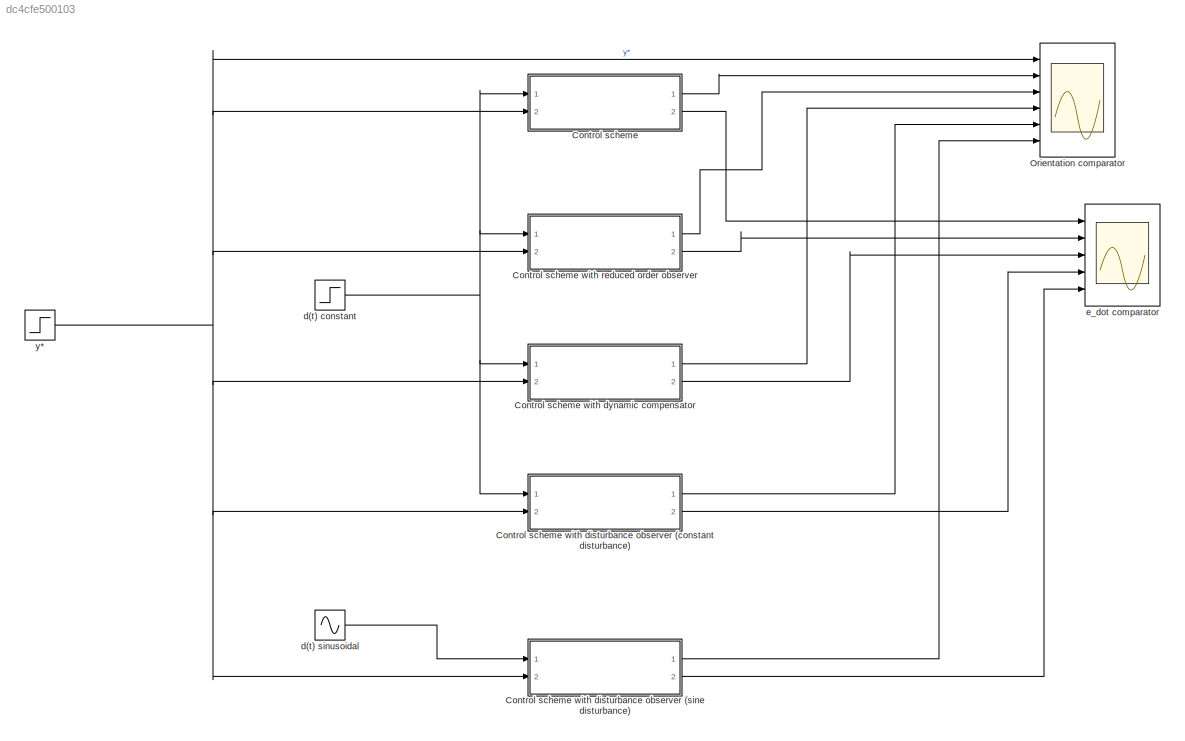
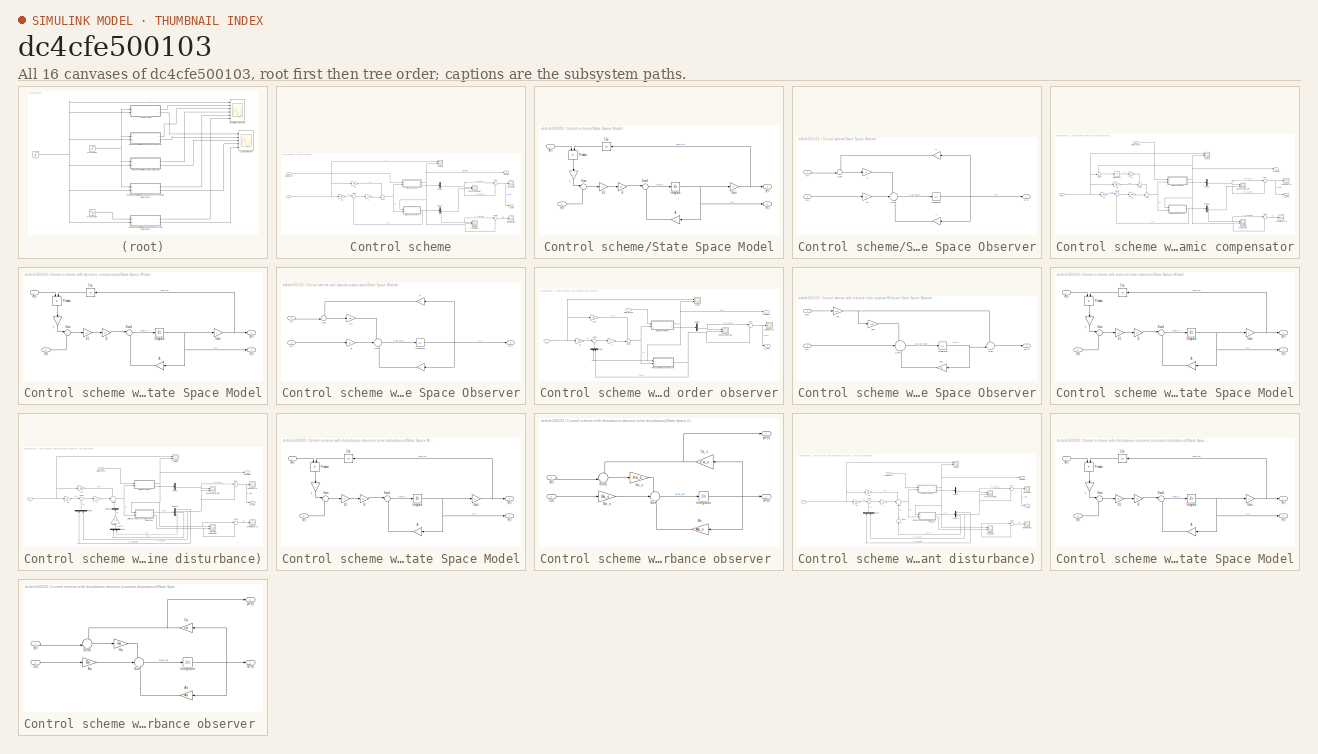
[diagram: thumbnail index - all 16 canvases of the model, root first then tree order]
MODEL slx_dc4cfe500103
KIND model
CONFIG AbsTol = auto
CONFIG EnableMultiTasking = off
CONFIG FixedStep = auto
CONFIG MaxStep = auto
CONFIG MinStep = auto
CONFIG RelTol = 1e-3
CONFIG SampleTimeConstraint = Unconstrained
CONFIG Solver = VariableStepAuto
CONFIG SolverName = VariableStepAuto
CONFIG StartTime = 0.0
CONFIG StopTime = 50
BLOCK [SubSystem] Control scheme
  Ports = [2, 2]
  RequestExecContextInheritance = off
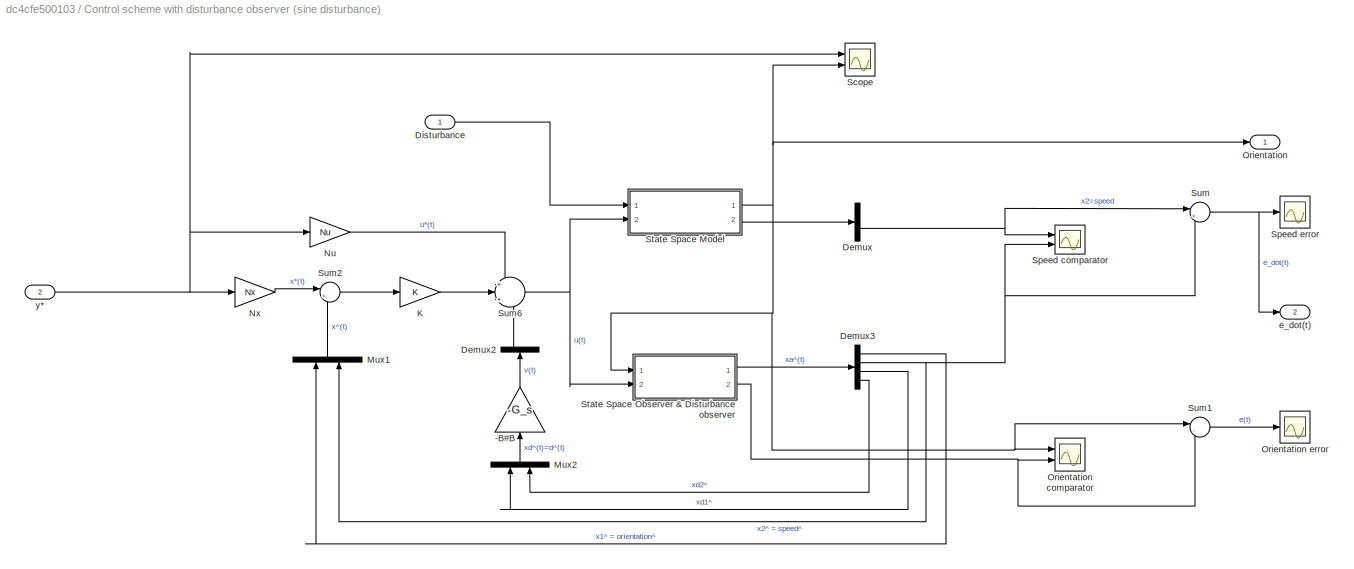
BLOCK [SubSystem] Control scheme with disturbance observer  (sine disturbance)
  Ports = [2, 2]
  RequestExecContextInheritance = off
BLOCK [Gain] Control scheme with disturbance observer  (sine disturbance)/-B#B
  Gain = -G_s
  Multiplication = Matrix(K*u)
  OutDataTypeStr = Inherit: Inherit via internal rule
  ParamDataTypeStr = Inherit: Inherit via internal rule
  SaturateOnIntegerOverflow = off
BLOCK [Demux] Control scheme with disturbance observer  (sine disturbance)/Demux
  DisplayOption = bar
  Outputs = 2
  Ports = [1, 2]
BLOCK [Demux] Control scheme with disturbance observer  (sine disturbance)/Demux2
  DisplayOption = bar
  Outputs = 2
  Ports = [1, 2]
BLOCK [Demux] Control scheme with disturbance observer  (sine disturbance)/Demux3
  DisplayOption = bar
  Ports = [1, 4]
BLOCK [Inport] Control scheme with disturbance observer  (sine disturbance)/Disturbance
  IconDisplay = Port number
BLOCK [Gain] Control scheme with disturbance observer  (sine disturbance)/K
  Gain = K
  Multiplication = Matrix(K*u)
  OutDataTypeStr = Inherit: Inherit via internal rule
  ParamDataTypeStr = Inherit: Inherit via internal rule
  SaturateOnIntegerOverflow = off
BLOCK [Mux] Control scheme with disturbance observer  (sine disturbance)/Mux1
  DisplayOption = bar
  Inputs = 2
  Ports = [2, 1]
BLOCK [Mux] Control scheme with disturbance observer  (sine disturbance)/Mux2
  DisplayOption = bar
  Inputs = 2
  Ports = [2, 1]
BLOCK [Gain] Control scheme with disturbance observer  (sine disturbance)/Nu
  Gain = Nu
  Multiplication = Matrix(K*u)
  OutDataTypeStr = Inherit: Inherit via internal rule
  ParamDataTypeStr = Inherit: Inherit via internal rule
  SaturateOnIntegerOverflow = off
BLOCK [Gain] Control scheme with disturbance observer  (sine disturbance)/Nx
  Gain = Nx
  Multiplication = Matrix(K*u)
  OutDataTypeStr = Inherit: Inherit via internal rule
  ParamDataTypeStr = Inherit: Inherit via internal rule
  SaturateOnIntegerOverflow = off
BLOCK [Outport] Control scheme with disturbance observer  (sine disturbance)/Orientation
  IconDisplay = Port number
BLOCK [Scope] Control scheme with disturbance observer  (sine disturbance)/Orientation comparator
  Floating = off
  NumInputPorts = 2
  Ports = [2]
  ScopeSpecificationString = Simulink.scopes.TimeScopeBlockCfg('CurrentConfiguration', extmgr.ConfigurationSet(extmgr.Configuration('Core','General UI',true),extmgr.Configuration('Core','Source UI',true),extmgr.Configuration('Sources','WiredSimulink',true,'DataLoggingVariableName','ScopeData2'),extmgr.Configuration('Visuals','Time Domain',true,'SerializedDisplays',{struct('MinYLimReal','-0.63015','MaxYLimReal','5.67134','YLab...<+1553ch>
BLOCK [Scope] Control scheme with disturbance observer  (sine disturbance)/Orientation error 
  Floating = off
  NumInputPorts = 1
  Ports = [1]
  ScopeSpecificationString = Simulink.scopes.TimeScopeBlockCfg('CurrentConfiguration', extmgr.ConfigurationSet(extmgr.Configuration('Core','General UI',true),extmgr.Configuration('Core','Source UI',true),extmgr.Configuration('Sources','WiredSimulink',true,'DataLoggingVariableName','ScopeData1'),extmgr.Configuration('Visuals','Time Domain',true,'SerializedDisplays',{struct('MinYLimReal','-1.14107','MaxYLimReal','0.26967','YLab...<+1413ch>
BLOCK [Scope] Control scheme with disturbance observer  (sine disturbance)/Scope
  Floating = off
  NumInputPorts = 2
  Ports = [2]
  ScopeSpecificationString = Simulink.scopes.TimeScopeBlockCfg('CurrentConfiguration', extmgr.ConfigurationSet(extmgr.Configuration('Core','General UI',true),extmgr.Configuration('Core','Source UI',true),extmgr.Configuration('Sources','WiredSimulink',true,'DataLoggingVariableName','ScopeData3'),extmgr.Configuration('Visuals','Time Domain',true,'SerializedDisplays',{struct('MinYLimReal','0.44598','MaxYLimReal','5.98614','YLabe...<+1671ch>
BLOCK [Scope] Control scheme with disturbance observer  (sine disturbance)/Speed comparator
  Floating = off
  NumInputPorts = 2
  Ports = [2]
  ScopeSpecificationString = Simulink.scopes.TimeScopeBlockCfg('CurrentConfiguration', extmgr.ConfigurationSet(extmgr.Configuration('Core','General UI',true),extmgr.Configuration('Core','Source UI',true),extmgr.Configuration('Sources','WiredSimulink',true,'DataLoggingVariableName','ScopeData4'),extmgr.Configuration('Visuals','Time Domain',true,'SerializedDisplays',{struct('MinYLimReal','-0.43249','MaxYLimReal','3.61626','YLab...<+1540ch>
BLOCK [Scope] Control scheme with disturbance observer  (sine disturbance)/Speed error 
  Floating = off
  NumInputPorts = 1
  Ports = [1]
  ScopeSpecificationString = Simulink.scopes.TimeScopeBlockCfg('CurrentConfiguration', extmgr.ConfigurationSet(extmgr.Configuration('Core','General UI',true),extmgr.Configuration('Core','Source UI',true),extmgr.Configuration('Sources','WiredSimulink',true,'DataLoggingVariableName','ScopeData5'),extmgr.Configuration('Visuals','Time Domain',true,'SerializedDisplays',{struct('MinYLimReal','-1.71976','MaxYLimReal','1.3022','YLabe...<+1545ch>
BLOCK [SubSystem] Control scheme with disturbance observer  (sine disturbance)/State Space Model
  Ports = [2, 2]
  RequestExecContextInheritance = off
BLOCK [Gain] Control scheme with disturbance observer  (sine disturbance)/State Space Model/1//J
  Gain = 1/J
  OutDataTypeStr = Inherit: Inherit via internal rule
  ParamDataTypeStr = Inherit: Inherit via internal rule
  SaturateOnIntegerOverflow = off
BLOCK [Gain] Control scheme with disturbance observer  (sine disturbance)/State Space Model/A
  Gain = A
  Multiplication = Matrix(K*u)
  OutDataTypeStr = Inherit: Inherit via internal rule
  ParamDataTypeStr = Inherit: Inherit via internal rule
  SaturateOnIntegerOverflow = off
BLOCK [Gain] Control scheme with disturbance observer  (sine disturbance)/State Space Model/B
  Gain = B
  Multiplication = Matrix(K*u)
  OutDataTypeStr = Inherit: Inherit via internal rule
  ParamDataTypeStr = Inherit: Inherit via internal rule
  SaturateOnIntegerOverflow = off
BLOCK [Trigonometry] Control scheme with disturbance observer  (sine disturbance)/State Space Model/Cos
  Operator = cos
  Ports = [1, 1]
BLOCK [Gain] Control scheme with disturbance observer  (sine disturbance)/State Space Model/Gain
  Gain = C
  Multiplication = Matrix(K*u)
  OutDataTypeStr = Inherit: Inherit via internal rule
  ParamDataTypeStr = Inherit: Inherit via internal rule
  SaturateOnIntegerOverflow = off
BLOCK [Integrator] Control scheme with disturbance observer  (sine disturbance)/State Space Model/Integrator
  InitialCondition = 1
  Ports = [1, 1]
BLOCK [Product] Control scheme with disturbance observer  (sine disturbance)/State Space Model/Product
  InputSameDT = off
  OutDataTypeStr = Inherit: Inherit via internal rule
  Ports = [2, 1]
  RndMeth = Floor
  SaturateOnIntegerOverflow = off
BLOCK [Sum] Control scheme with disturbance observer  (sine disturbance)/State Space Model/Sum
  IconShape = round
  InputSameDT = off
  Inputs = |++
  OutDataTypeStr = Inherit: Inherit via internal rule
  Ports = [2, 1]
  SaturateOnIntegerOverflow = off
BLOCK [Sum] Control scheme with disturbance observer  (sine disturbance)/State Space Model/Sum1
  IconShape = round
  InputSameDT = off
  Inputs = |++
  OutDataTypeStr = Inherit: Inherit via internal rule
  Ports = [2, 1]
  SaturateOnIntegerOverflow = off
BLOCK [Inport] Control scheme with disturbance observer  (sine disturbance)/State Space Model/d(t)
  IconDisplay = Port number
BLOCK [Gain] Control scheme with disturbance observer  (sine disturbance)/State Space Model/r
  Gain = r
  OutDataTypeStr = Inherit: Inherit via internal rule
  ParamDataTypeStr = Inherit: Inherit via internal rule
  SaturateOnIntegerOverflow = off
BLOCK [Inport] Control scheme with disturbance observer  (sine disturbance)/State Space Model/u(t)
  IconDisplay = Port number
  Port = 2
BLOCK [Outport] Control scheme with disturbance observer  (sine disturbance)/State Space Model/x(t)
  IconDisplay = Port number
  Port = 2
BLOCK [Outport] Control scheme with disturbance observer  (sine disturbance)/State Space Model/y(t)
  IconDisplay = Port number
BLOCK [SubSystem] Control scheme with disturbance observer  (sine disturbance)/State Space Observer & Disturbance observer 
  Ports = [2, 2]
  RequestExecContextInheritance = off
BLOCK [Gain] Control scheme with disturbance observer  (sine disturbance)/State Space Observer & Disturbance observer /Aa
  Gain = Aa_s
  Multiplication = Matrix(K*u)
  OutDataTypeStr = Inherit: Inherit via internal rule
  ParamDataTypeStr = Inherit: Inherit via internal rule
  SaturateOnIntegerOverflow = off
BLOCK [Gain] Control scheme with disturbance observer  (sine disturbance)/State Space Observer & Disturbance observer /Ba_s
  Gain = Ba_s
  Multiplication = Matrix(K*u)
  OutDataTypeStr = Inherit: Inherit via internal rule
  ParamDataTypeStr = Inherit: Inherit via internal rule
  SaturateOnIntegerOverflow = off
BLOCK [Gain] Control scheme with disturbance observer  (sine disturbance)/State Space Observer & Disturbance observer /Ca_s
  Gain = Ca_s
  Multiplication = Matrix(K*u)
  OutDataTypeStr = Inherit: Inherit via internal rule
  ParamDataTypeStr = Inherit: Inherit via internal rule
  SaturateOnIntegerOverflow = off
BLOCK [Gain] Control scheme with disturbance observer  (sine disturbance)/State Space Observer & Disturbance observer /Ha_s
  Gain = Ha_s
  Multiplication = Matrix(K*u)
  OutDataTypeStr = Inherit: Inherit via internal rule
  ParamDataTypeStr = Inherit: Inherit via internal rule
  SaturateOnIntegerOverflow = off
BLOCK [Integrator] Control scheme with disturbance observer  (sine disturbance)/State Space Observer & Disturbance observer /Integrator
  Ports = [1, 1]
BLOCK [Sum] Control scheme with disturbance observer  (sine disturbance)/State Space Observer & Disturbance observer /Sum
  IconShape = round
  InputSameDT = off
  Inputs = +|+|+
  OutDataTypeStr = Inherit: Inherit via internal rule
  Ports = [3, 1]
  SaturateOnIntegerOverflow = off
BLOCK [Sum] Control scheme with disturbance observer  (sine disturbance)/State Space Observer & Disturbance observer /Sum1
  IconShape = round
  InputSameDT = off
  Inputs = -|+||
  OutDataTypeStr = Inherit: Inherit via internal rule
  Ports = [2, 1]
  SaturateOnIntegerOverflow = off
BLOCK [Inport] Control scheme with disturbance observer  (sine disturbance)/State Space Observer & Disturbance observer /u(t)
  IconDisplay = Port number
  Port = 2
BLOCK [Outport] Control scheme with disturbance observer  (sine disturbance)/State Space Observer & Disturbance observer /xa^(t)
  IconDisplay = Port number
BLOCK [Inport] Control scheme with disturbance observer  (sine disturbance)/State Space Observer & Disturbance observer /y(t)
  IconDisplay = Port number
BLOCK [Outport] Control scheme with disturbance observer  (sine disturbance)/State Space Observer & Disturbance observer /ya^(t)
  IconDisplay = Port number
  Port = 2
BLOCK [Sum] Control scheme with disturbance observer  (sine disturbance)/Sum
  IconShape = round
  InputSameDT = off
  Inputs = |+-
  OutDataTypeStr = Inherit: Inherit via internal rule
  Ports = [2, 1]
  SaturateOnIntegerOverflow = off
BLOCK [Sum] Control scheme with disturbance observer  (sine disturbance)/Sum1
  IconShape = round
  InputSameDT = off
  Inputs = |-+
  OutDataTypeStr = Inherit: Inherit via internal rule
  Ports = [2, 1]
  SaturateOnIntegerOverflow = off
BLOCK [Sum] Control scheme with disturbance observer  (sine disturbance)/Sum2
  IconShape = round
  InputSameDT = off
  Inputs = |+-
  OutDataTypeStr = Inherit: Inherit via internal rule
  Ports = [2, 1]
  SaturateOnIntegerOverflow = off
BLOCK [Sum] Control scheme with disturbance observer  (sine disturbance)/Sum6
  IconShape = round
  InputSameDT = off
  Inputs = +|+|+
  OutDataTypeStr = Inherit: Inherit via internal rule
  Ports = [3, 1]
  SaturateOnIntegerOverflow = off
BLOCK [Outport] Control scheme with disturbance observer  (sine disturbance)/e_dot(t)
  IconDisplay = Port number
  Port = 2
BLOCK [Inport] Control scheme with disturbance observer  (sine disturbance)/y*
  IconDisplay = Port number
  Port = 2
BLOCK [SubSystem] Control scheme with disturbance observer (constant disturbance)
  Ports = [2, 2]
  RequestExecContextInheritance = off
BLOCK [Gain] Control scheme with disturbance observer (constant disturbance)/-B#B
  Gain = -G
  Multiplication = Matrix(K*u)
  OutDataTypeStr = Inherit: Inherit via internal rule
  ParamDataTypeStr = Inherit: Inherit via internal rule
  SaturateOnIntegerOverflow = off
BLOCK [Demux] Control scheme with disturbance observer (constant disturbance)/Demux
  DisplayOption = bar
  Outputs = 2
  Ports = [1, 2]
BLOCK [Demux] Control scheme with disturbance observer (constant disturbance)/Demux3
  DisplayOption = bar
  Outputs = 3
  Ports = [1, 3]
BLOCK [Inport] Control scheme with disturbance observer (constant disturbance)/Disturbance
  IconDisplay = Port number
BLOCK [Gain] Control scheme with disturbance observer (constant disturbance)/K
  Gain = K
  Multiplication = Matrix(K*u)
  OutDataTypeStr = Inherit: Inherit via internal rule
  ParamDataTypeStr = Inherit: Inherit via internal rule
  SaturateOnIntegerOverflow = off
BLOCK [Mux] Control scheme with disturbance observer (constant disturbance)/Mux1
  DisplayOption = bar
  Inputs = 2
  Ports = [2, 1]
BLOCK [Gain] Control scheme with disturbance observer (constant disturbance)/Nu
  Gain = Nu
  Multiplication = Matrix(K*u)
  OutDataTypeStr = Inherit: Inherit via internal rule
  ParamDataTypeStr = Inherit: Inherit via internal rule
  SaturateOnIntegerOverflow = off
BLOCK [Gain] Control scheme with disturbance observer (constant disturbance)/Nx
  Gain = Nx
  Multiplication = Matrix(K*u)
  OutDataTypeStr = Inherit: Inherit via internal rule
  ParamDataTypeStr = Inherit: Inherit via internal rule
  SaturateOnIntegerOverflow = off
BLOCK [Outport] Control scheme with disturbance observer (constant disturbance)/Orientation
  IconDisplay = Port number
BLOCK [Scope] Control scheme with disturbance observer (constant disturbance)/Orientation comparator
  Floating = off
  NumInputPorts = 2
  Ports = [2]
  ScopeSpecificationString = Simulink.scopes.TimeScopeBlockCfg('CurrentConfiguration', extmgr.ConfigurationSet(extmgr.Configuration('Core','General UI',true),extmgr.Configuration('Core','Source UI',true),extmgr.Configuration('Sources','WiredSimulink',true,'DataLoggingVariableName','ScopeData2'),extmgr.Configuration('Visuals','Time Domain',true,'SerializedDisplays',{struct('MinYLimReal','-0.63015','MaxYLimReal','5.67134','YLab...<+1553ch>
BLOCK [Scope] Control scheme with disturbance observer (constant disturbance)/Orientation error 
  Floating = off
  NumInputPorts = 1
  Ports = [1]
  ScopeSpecificationString = Simulink.scopes.TimeScopeBlockCfg('CurrentConfiguration', extmgr.ConfigurationSet(extmgr.Configuration('Core','General UI',true),extmgr.Configuration('Core','Source UI',true),extmgr.Configuration('Sources','WiredSimulink',true,'DataLoggingVariableName','ScopeData1'),extmgr.Configuration('Visuals','Time Domain',true,'SerializedDisplays',{struct('MinYLimReal','-1.14107','MaxYLimReal','0.26967','YLab...<+1413ch>
BLOCK [Scope] Control scheme with disturbance observer (constant disturbance)/Scope
  Floating = off
  NumInputPorts = 2
  Ports = [2]
  ScopeSpecificationString = Simulink.scopes.TimeScopeBlockCfg('CurrentConfiguration', extmgr.ConfigurationSet(extmgr.Configuration('Core','General UI',true),extmgr.Configuration('Core','Source UI',true),extmgr.Configuration('Sources','WiredSimulink',true,'DataLoggingVariableName','ScopeData3'),extmgr.Configuration('Visuals','Time Domain',true,'SerializedDisplays',{struct('MinYLimReal','0.44608','MaxYLimReal','5.98529','YLabe...<+1671ch>
BLOCK [Scope] Control scheme with disturbance observer (constant disturbance)/Speed comparator
  Floating = off
  NumInputPorts = 2
  Ports = [2]
  ScopeSpecificationString = Simulink.scopes.TimeScopeBlockCfg('CurrentConfiguration', extmgr.ConfigurationSet(extmgr.Configuration('Core','General UI',true),extmgr.Configuration('Core','Source UI',true),extmgr.Configuration('Sources','WiredSimulink',true,'DataLoggingVariableName','ScopeData4'),extmgr.Configuration('Visuals','Time Domain',true,'SerializedDisplays',{struct('MinYLimReal','-0.43249','MaxYLimReal','3.61626','YLab...<+1540ch>
BLOCK [Scope] Control scheme with disturbance observer (constant disturbance)/Speed error 
  Floating = off
  NumInputPorts = 1
  Ports = [1]
  ScopeSpecificationString = Simulink.scopes.TimeScopeBlockCfg('CurrentConfiguration', extmgr.ConfigurationSet(extmgr.Configuration('Core','General UI',true),extmgr.Configuration('Core','Source UI',true),extmgr.Configuration('Sources','WiredSimulink',true,'DataLoggingVariableName','ScopeData5'),extmgr.Configuration('Visuals','Time Domain',true,'SerializedDisplays',{struct('MinYLimReal','-1.71976','MaxYLimReal','1.3022','YLabe...<+1545ch>
BLOCK [SubSystem] Control scheme with disturbance observer (constant disturbance)/State Space Model
  Ports = [2, 2]
  RequestExecContextInheritance = off
BLOCK [Gain] Control scheme with disturbance observer (constant disturbance)/State Space Model/1//J
  Gain = 1/J
  OutDataTypeStr = Inherit: Inherit via internal rule
  ParamDataTypeStr = Inherit: Inherit via internal rule
  SaturateOnIntegerOverflow = off
BLOCK [Gain] Control scheme with disturbance observer (constant disturbance)/State Space Model/A
  Gain = A
  Multiplication = Matrix(K*u)
  OutDataTypeStr = Inherit: Inherit via internal rule
  ParamDataTypeStr = Inherit: Inherit via internal rule
  SaturateOnIntegerOverflow = off
BLOCK [Gain] Control scheme with disturbance observer (constant disturbance)/State Space Model/B
  Gain = B
  Multiplication = Matrix(K*u)
  OutDataTypeStr = Inherit: Inherit via internal rule
  ParamDataTypeStr = Inherit: Inherit via internal rule
  SaturateOnIntegerOverflow = off
BLOCK [Trigonometry] Control scheme with disturbance observer (constant disturbance)/State Space Model/Cos
  Operator = cos
  Ports = [1, 1]
BLOCK [Gain] Control scheme with disturbance observer (constant disturbance)/State Space Model/Gain
  Gain = C
  Multiplication = Matrix(K*u)
  OutDataTypeStr = Inherit: Inherit via internal rule
  ParamDataTypeStr = Inherit: Inherit via internal rule
  SaturateOnIntegerOverflow = off
BLOCK [Integrator] Control scheme with disturbance observer (constant disturbance)/State Space Model/Integrator
  InitialCondition = 1
  Ports = [1, 1]
BLOCK [Product] Control scheme with disturbance observer (constant disturbance)/State Space Model/Product
  InputSameDT = off
  OutDataTypeStr = Inherit: Inherit via internal rule
  Ports = [2, 1]
  RndMeth = Floor
  SaturateOnIntegerOverflow = off
BLOCK [Sum] Control scheme with disturbance observer (constant disturbance)/State Space Model/Sum
  IconShape = round
  InputSameDT = off
  Inputs = |++
  OutDataTypeStr = Inherit: Inherit via internal rule
  Ports = [2, 1]
  SaturateOnIntegerOverflow = off
BLOCK [Sum] Control scheme with disturbance observer (constant disturbance)/State Space Model/Sum1
  IconShape = round
  InputSameDT = off
  Inputs = |++
  OutDataTypeStr = Inherit: Inherit via internal rule
  Ports = [2, 1]
  SaturateOnIntegerOverflow = off
BLOCK [Inport] Control scheme with disturbance observer (constant disturbance)/State Space Model/d(t)
  IconDisplay = Port number
BLOCK [Gain] Control scheme with disturbance observer (constant disturbance)/State Space Model/r
  Gain = r
  OutDataTypeStr = Inherit: Inherit via internal rule
  ParamDataTypeStr = Inherit: Inherit via internal rule
  SaturateOnIntegerOverflow = off
BLOCK [Inport] Control scheme with disturbance observer (constant disturbance)/State Space Model/u(t)
  IconDisplay = Port number
  Port = 2
BLOCK [Outport] Control scheme with disturbance observer (constant disturbance)/State Space Model/x(t)
  IconDisplay = Port number
  Port = 2
BLOCK [Outport] Control scheme with disturbance observer (constant disturbance)/State Space Model/y(t)
  IconDisplay = Port number
BLOCK [SubSystem] Control scheme with disturbance observer (constant disturbance)/State Space Observer & Disturbance observer 
  Ports = [2, 2]
  RequestExecContextInheritance = off
BLOCK [Gain] Control scheme with disturbance observer (constant disturbance)/State Space Observer & Disturbance observer /Aa
  Gain = Aa
  Multiplication = Matrix(K*u)
  OutDataTypeStr = Inherit: Inherit via internal rule
  ParamDataTypeStr = Inherit: Inherit via internal rule
  SaturateOnIntegerOverflow = off
BLOCK [Gain] Control scheme with disturbance observer (constant disturbance)/State Space Observer & Disturbance observer /Ba
  Gain = Ba
  Multiplication = Matrix(K*u)
  OutDataTypeStr = Inherit: Inherit via internal rule
  ParamDataTypeStr = Inherit: Inherit via internal rule
  SaturateOnIntegerOverflow = off
BLOCK [Gain] Control scheme with disturbance observer (constant disturbance)/State Space Observer & Disturbance observer /Ca
  Gain = Ca
  Multiplication = Matrix(K*u)
  OutDataTypeStr = Inherit: Inherit via internal rule
  ParamDataTypeStr = Inherit: Inherit via internal rule
  SaturateOnIntegerOverflow = off
BLOCK [Gain] Control scheme with disturbance observer (constant disturbance)/State Space Observer & Disturbance observer /Ha
  Gain = Ha
  Multiplication = Matrix(K*u)
  OutDataTypeStr = Inherit: Inherit via internal rule
  ParamDataTypeStr = Inherit: Inherit via internal rule
  SaturateOnIntegerOverflow = off
BLOCK [Integrator] Control scheme with disturbance observer (constant disturbance)/State Space Observer & Disturbance observer /Integrator
  Ports = [1, 1]
BLOCK [Sum] Control scheme with disturbance observer (constant disturbance)/State Space Observer & Disturbance observer /Sum
  IconShape = round
  InputSameDT = off
  Inputs = +|+|+
  OutDataTypeStr = Inherit: Inherit via internal rule
  Ports = [3, 1]
  SaturateOnIntegerOverflow = off
BLOCK [Sum] Control scheme with disturbance observer (constant disturbance)/State Space Observer & Disturbance observer /Sum1
  IconShape = round
  InputSameDT = off
  Inputs = -|+||
  OutDataTypeStr = Inherit: Inherit via internal rule
  Ports = [2, 1]
  SaturateOnIntegerOverflow = off
BLOCK [Inport] Control scheme with disturbance observer (constant disturbance)/State Space Observer & Disturbance observer /u(t)
  IconDisplay = Port number
  Port = 2
BLOCK [Outport] Control scheme with disturbance observer (constant disturbance)/State Space Observer & Disturbance observer /xa^(t)
  IconDisplay = Port number
BLOCK [Inport] Control scheme with disturbance observer (constant disturbance)/State Space Observer & Disturbance observer /y(t)
  IconDisplay = Port number
BLOCK [Outport] Control scheme with disturbance observer (constant disturbance)/State Space Observer & Disturbance observer /ya^(t)
  IconDisplay = Port number
  Port = 2
BLOCK [Sum] Control scheme with disturbance observer (constant disturbance)/Sum
  IconShape = round
  InputSameDT = off
  Inputs = |+-
  OutDataTypeStr = Inherit: Inherit via internal rule
  Ports = [2, 1]
  SaturateOnIntegerOverflow = off
BLOCK [Sum] Control scheme with disturbance observer (constant disturbance)/Sum1
  IconShape = round
  InputSameDT = off
  Inputs = |-+
  OutDataTypeStr = Inherit: Inherit via internal rule
  Ports = [2, 1]
  SaturateOnIntegerOverflow = off
BLOCK [Sum] Control scheme with disturbance observer (constant disturbance)/Sum2
  IconShape = round
  InputSameDT = off
  Inputs = |+-
  OutDataTypeStr = Inherit: Inherit via internal rule
  Ports = [2, 1]
  SaturateOnIntegerOverflow = off
BLOCK [Sum] Control scheme with disturbance observer (constant disturbance)/Sum6
  IconShape = round
  InputSameDT = off
  Inputs = +|+|+
  OutDataTypeStr = Inherit: Inherit via internal rule
  Ports = [3, 1]
  SaturateOnIntegerOverflow = off
BLOCK [Outport] Control scheme with disturbance observer (constant disturbance)/e_dot(t)
  IconDisplay = Port number
  Port = 2
BLOCK [Inport] Control scheme with disturbance observer (constant disturbance)/y*
  IconDisplay = Port number
  Port = 2
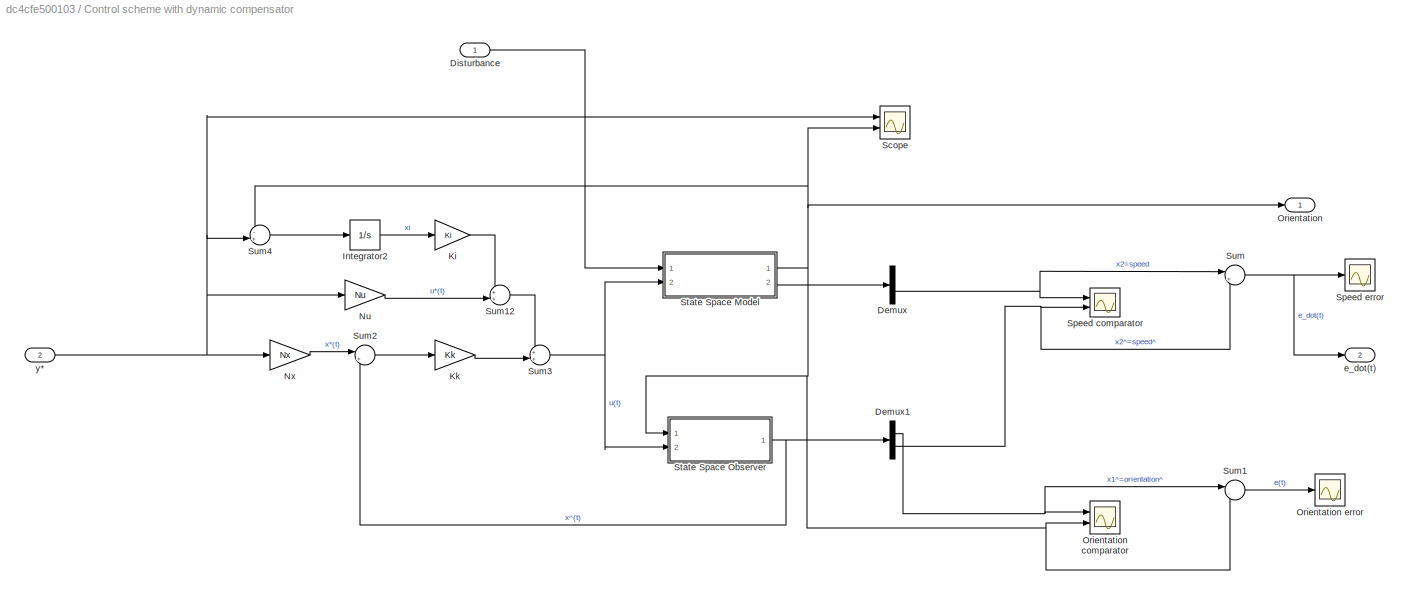
BLOCK [SubSystem] Control scheme with dynamic compensator
  Ports = [2, 2]
  RequestExecContextInheritance = off
BLOCK [Demux] Control scheme with dynamic compensator/Demux
  DisplayOption = bar
  Outputs = 2
  Ports = [1, 2]
BLOCK [Demux] Control scheme with dynamic compensator/Demux1
  DisplayOption = bar
  Outputs = 2
  Ports = [1, 2]
BLOCK [Inport] Control scheme with dynamic compensator/Disturbance
  IconDisplay = Port number
BLOCK [Integrator] Control scheme with dynamic compensator/Integrator2
  InitialCondition = 1
  Ports = [1, 1]
BLOCK [Gain] Control scheme with dynamic compensator/Ki
  Gain = Ki
  Multiplication = Matrix(K*u)
  OutDataTypeStr = Inherit: Inherit via internal rule
  ParamDataTypeStr = Inherit: Inherit via internal rule
  SaturateOnIntegerOverflow = off
BLOCK [Gain] Control scheme with dynamic compensator/Kk
  Gain = Kk
  Multiplication = Matrix(K*u)
  OutDataTypeStr = Inherit: Inherit via internal rule
  ParamDataTypeStr = Inherit: Inherit via internal rule
  SaturateOnIntegerOverflow = off
BLOCK [Gain] Control scheme with dynamic compensator/Nu
  Gain = Nu
  Multiplication = Matrix(K*u)
  OutDataTypeStr = Inherit: Inherit via internal rule
  ParamDataTypeStr = Inherit: Inherit via internal rule
  SaturateOnIntegerOverflow = off
BLOCK [Gain] Control scheme with dynamic compensator/Nx
  Gain = Nx
  Multiplication = Matrix(K*u)
  OutDataTypeStr = Inherit: Inherit via internal rule
  ParamDataTypeStr = Inherit: Inherit via internal rule
  SaturateOnIntegerOverflow = off
BLOCK [Outport] Control scheme with dynamic compensator/Orientation
  IconDisplay = Port number
BLOCK [Scope] Control scheme with dynamic compensator/Orientation comparator
  Floating = off
  NumInputPorts = 2
  Ports = [2]
  ScopeSpecificationString = Simulink.scopes.TimeScopeBlockCfg('CurrentConfiguration', extmgr.ConfigurationSet(extmgr.Configuration('Core','General UI',true),extmgr.Configuration('Core','Source UI',true),extmgr.Configuration('Sources','WiredSimulink',true,'DataLoggingVariableName','ScopeData2'),extmgr.Configuration('Visuals','Time Domain',true,'SerializedDisplays',{struct('MinYLimReal','-0.7848','MaxYLimReal','7.06316','YLabe...<+1518ch>
BLOCK [Scope] Control scheme with dynamic compensator/Orientation error 
  Floating = off
  NumInputPorts = 1
  Ports = [1]
  ScopeSpecificationString = Simulink.scopes.TimeScopeBlockCfg('CurrentConfiguration', extmgr.ConfigurationSet(extmgr.Configuration('Core','General UI',true),extmgr.Configuration('Core','Source UI',true),extmgr.Configuration('Sources','WiredSimulink',true,'DataLoggingVariableName','ScopeData1'),extmgr.Configuration('Visuals','Time Domain',true,'SerializedDisplays',{struct('MinYLimReal','-0.22908','MaxYLimReal','1.13656','YLab...<+1413ch>
BLOCK [Scope] Control scheme with dynamic compensator/Scope
  Floating = off
  NumInputPorts = 2
  Ports = [2]
  ScopeSpecificationString = Simulink.scopes.TimeScopeBlockCfg('CurrentConfiguration', extmgr.ConfigurationSet(extmgr.Configuration('Core','General UI',true),extmgr.Configuration('Core','Source UI',true),extmgr.Configuration('Sources','WiredSimulink',true,'DataLoggingVariableName','ScopeData3'),extmgr.Configuration('Visuals','Time Domain',true,'SerializedDisplays',{struct('MinYLimReal','0.49898','MaxYLimReal','5.50921','YLabe...<+1653ch>
BLOCK [Scope] Control scheme with dynamic compensator/Speed comparator
  Floating = off
  NumInputPorts = 2
  Ports = [2]
  ScopeSpecificationString = Simulink.scopes.TimeScopeBlockCfg('CurrentConfiguration', extmgr.ConfigurationSet(extmgr.Configuration('Core','General UI',true),extmgr.Configuration('Core','Source UI',true),extmgr.Configuration('Sources','WiredSimulink',true,'DataLoggingVariableName','ScopeData4'),extmgr.Configuration('Visuals','Time Domain',true,'SerializedDisplays',{struct('MinYLimReal','-1.03214','MaxYLimReal','4.47731','YLab...<+1538ch>
BLOCK [Scope] Control scheme with dynamic compensator/Speed error 
  Floating = off
  NumInputPorts = 1
  Ports = [1]
  ScopeSpecificationString = Simulink.scopes.TimeScopeBlockCfg('CurrentConfiguration', extmgr.ConfigurationSet(extmgr.Configuration('Core','General UI',true),extmgr.Configuration('Core','Source UI',true),extmgr.Configuration('Sources','WiredSimulink',true,'DataLoggingVariableName','ScopeData5'),extmgr.Configuration('Visuals','Time Domain',true,'SerializedDisplays',{struct('MinYLimReal','-0.57578','MaxYLimReal','1.17509','YLab...<+1547ch>
BLOCK [SubSystem] Control scheme with dynamic compensator/State Space Model
  Ports = [2, 2]
  RequestExecContextInheritance = off
BLOCK [Gain] Control scheme with dynamic compensator/State Space Model/1//J
  Gain = 1/J
  OutDataTypeStr = Inherit: Inherit via internal rule
  ParamDataTypeStr = Inherit: Inherit via internal rule
  SaturateOnIntegerOverflow = off
BLOCK [Gain] Control scheme with dynamic compensator/State Space Model/A
  Gain = A
  Multiplication = Matrix(K*u)
  OutDataTypeStr = Inherit: Inherit via internal rule
  ParamDataTypeStr = Inherit: Inherit via internal rule
  SaturateOnIntegerOverflow = off
BLOCK [Gain] Control scheme with dynamic compensator/State Space Model/B
  Gain = B
  Multiplication = Matrix(K*u)
  OutDataTypeStr = Inherit: Inherit via internal rule
  ParamDataTypeStr = Inherit: Inherit via internal rule
  SaturateOnIntegerOverflow = off
BLOCK [Trigonometry] Control scheme with dynamic compensator/State Space Model/Cos
  Operator = cos
  Ports = [1, 1]
BLOCK [Gain] Control scheme with dynamic compensator/State Space Model/Gain
  Gain = C
  Multiplication = Matrix(K*u)
  OutDataTypeStr = Inherit: Inherit via internal rule
  ParamDataTypeStr = Inherit: Inherit via internal rule
  SaturateOnIntegerOverflow = off
BLOCK [Integrator] Control scheme with dynamic compensator/State Space Model/Integrator
  InitialCondition = 1
  Ports = [1, 1]
BLOCK [Product] Control scheme with dynamic compensator/State Space Model/Product
  InputSameDT = off
  OutDataTypeStr = Inherit: Inherit via internal rule
  Ports = [2, 1]
  RndMeth = Floor
  SaturateOnIntegerOverflow = off
BLOCK [Sum] Control scheme with dynamic compensator/State Space Model/Sum
  IconShape = round
  InputSameDT = off
  Inputs = |++
  OutDataTypeStr = Inherit: Inherit via internal rule
  Ports = [2, 1]
  SaturateOnIntegerOverflow = off
BLOCK [Sum] Control scheme with dynamic compensator/State Space Model/Sum1
  IconShape = round
  InputSameDT = off
  Inputs = |++
  OutDataTypeStr = Inherit: Inherit via internal rule
  Ports = [2, 1]
  SaturateOnIntegerOverflow = off
BLOCK [Inport] Control scheme with dynamic compensator/State Space Model/d(t)
  IconDisplay = Port number
BLOCK [Gain] Control scheme with dynamic compensator/State Space Model/r
  Gain = r
  OutDataTypeStr = Inherit: Inherit via internal rule
  ParamDataTypeStr = Inherit: Inherit via internal rule
  SaturateOnIntegerOverflow = off
BLOCK [Inport] Control scheme with dynamic compensator/State Space Model/u(t)
  IconDisplay = Port number
  Port = 2
BLOCK [Outport] Control scheme with dynamic compensator/State Space Model/x(t)
  IconDisplay = Port number
  Port = 2
BLOCK [Outport] Control scheme with dynamic compensator/State Space Model/y(t)
  IconDisplay = Port number
BLOCK [SubSystem] Control scheme with dynamic compensator/State Space Observer
  Ports = [2, 1]
  RequestExecContextInheritance = off
BLOCK [Gain] Control scheme with dynamic compensator/State Space Observer/A
  Gain = A
  Multiplication = Matrix(K*u)
  OutDataTypeStr = Inherit: Inherit via internal rule
  ParamDataTypeStr = Inherit: Inherit via internal rule
  SaturateOnIntegerOverflow = off
BLOCK [Gain] Control scheme with dynamic compensator/State Space Observer/B
  Gain = B
  Multiplication = Matrix(K*u)
  OutDataTypeStr = Inherit: Inherit via internal rule
  ParamDataTypeStr = Inherit: Inherit via internal rule
  SaturateOnIntegerOverflow = off
BLOCK [Gain] Control scheme with dynamic compensator/State Space Observer/C
  Gain = C
  Multiplication = Matrix(K*u)
  OutDataTypeStr = Inherit: Inherit via internal rule
  ParamDataTypeStr = Inherit: Inherit via internal rule
  SaturateOnIntegerOverflow = off
BLOCK [Gain] Control scheme with dynamic compensator/State Space Observer/Hk
  Gain = Hk
  Multiplication = Matrix(K*u)
  OutDataTypeStr = Inherit: Inherit via internal rule
  ParamDataTypeStr = Inherit: Inherit via internal rule
  SaturateOnIntegerOverflow = off
BLOCK [Integrator] Control scheme with dynamic compensator/State Space Observer/Integrator
  Ports = [1, 1]
BLOCK [Sum] Control scheme with dynamic compensator/State Space Observer/Sum
  IconShape = round
  InputSameDT = off
  Inputs = -+|
  OutDataTypeStr = Inherit: Inherit via internal rule
  Ports = [2, 1]
  SaturateOnIntegerOverflow = off
BLOCK [Sum] Control scheme with dynamic compensator/State Space Observer/Sum1
  IconShape = round
  InputSameDT = off
  Inputs = +|+|+
  OutDataTypeStr = Inherit: Inherit via internal rule
  Ports = [3, 1]
  SaturateOnIntegerOverflow = off
BLOCK [Inport] Control scheme with dynamic compensator/State Space Observer/u(t)
  IconDisplay = Port number
  Port = 2
BLOCK [Outport] Control scheme with dynamic compensator/State Space Observer/x^(t)
  IconDisplay = Port number
BLOCK [Inport] Control scheme with dynamic compensator/State Space Observer/y(t)
  IconDisplay = Port number
BLOCK [Sum] Control scheme with dynamic compensator/Sum
  IconShape = round
  InputSameDT = off
  Inputs = |+-
  OutDataTypeStr = Inherit: Inherit via internal rule
  Ports = [2, 1]
  SaturateOnIntegerOverflow = off
BLOCK [Sum] Control scheme with dynamic compensator/Sum1
  IconShape = round
  InputSameDT = off
  Inputs = |-+
  OutDataTypeStr = Inherit: Inherit via internal rule
  Ports = [2, 1]
  SaturateOnIntegerOverflow = off
BLOCK [Sum] Control scheme with dynamic compensator/Sum12
  IconShape = round
  InputSameDT = off
  Inputs = ++|
  OutDataTypeStr = Inherit: Inherit via internal rule
  Ports = [2, 1]
  SaturateOnIntegerOverflow = off
BLOCK [Sum] Control scheme with dynamic compensator/Sum2
  IconShape = round
  InputSameDT = off
  Inputs = |+-
  OutDataTypeStr = Inherit: Inherit via internal rule
  Ports = [2, 1]
  SaturateOnIntegerOverflow = off
BLOCK [Sum] Control scheme with dynamic compensator/Sum3
  IconShape = round
  InputSameDT = off
  Inputs = ++|
  OutDataTypeStr = Inherit: Inherit via internal rule
  Ports = [2, 1]
  SaturateOnIntegerOverflow = off
BLOCK [Sum] Control scheme with dynamic compensator/Sum4
  IconShape = round
  InputSameDT = off
  Inputs = -+|
  OutDataTypeStr = Inherit: Inherit via internal rule
  Ports = [2, 1]
  SaturateOnIntegerOverflow = off
BLOCK [Outport] Control scheme with dynamic compensator/e_dot(t)
  IconDisplay = Port number
  Port = 2
BLOCK [Inport] Control scheme with dynamic compensator/y*
  IconDisplay = Port number
  Port = 2
BLOCK [SubSystem] Control scheme with reduced order observer
  Ports = [2, 2]
  RequestExecContextInheritance = off
BLOCK [Demux] Control scheme with reduced order observer/Demux
  DisplayOption = bar
  Outputs = 2
  Ports = [1, 2]
BLOCK [Inport] Control scheme with reduced order observer/Disturbance
  IconDisplay = Port number
BLOCK [Gain] Control scheme with reduced order observer/K
  Gain = K
  Multiplication = Matrix(K*u)
  OutDataTypeStr = Inherit: Inherit via internal rule
  ParamDataTypeStr = Inherit: Inherit via internal rule
  SaturateOnIntegerOverflow = off
BLOCK [Mux] Control scheme with reduced order observer/Mux1
  DisplayOption = bar
  Inputs = 2
  Ports = [2, 1]
BLOCK [Gain] Control scheme with reduced order observer/Nu 2
  Gain = Nu
  Multiplication = Matrix(K*u)
  OutDataTypeStr = Inherit: Inherit via internal rule
  ParamDataTypeStr = Inherit: Inherit via internal rule
  SaturateOnIntegerOverflow = off
BLOCK [Gain] Control scheme with reduced order observer/Nx
  Gain = Nx
  Multiplication = Matrix(K*u)
  OutDataTypeStr = Inherit: Inherit via internal rule
  ParamDataTypeStr = Inherit: Inherit via internal rule
  SaturateOnIntegerOverflow = off
BLOCK [Outport] Control scheme with reduced order observer/Orientation
  IconDisplay = Port number
BLOCK [SubSystem] Control scheme with reduced order observer/Reduced State Space Observer
  Ports = [2, 1]
  RequestExecContextInheritance = off
BLOCK [Integrator] Control scheme with reduced order observer/Reduced State Space Observer/Integrator
  Ports = [1, 1]
BLOCK [Sum] Control scheme with reduced order observer/Reduced State Space Observer/Sum
  IconShape = round
  InputSameDT = off
  Inputs = +|+||
  OutDataTypeStr = Inherit: Inherit via internal rule
  Ports = [2, 1]
  SaturateOnIntegerOverflow = off
BLOCK [Sum] Control scheme with reduced order observer/Reduced State Space Observer/Sum1
  IconShape = round
  InputSameDT = off
  Inputs = -|+|-
  OutDataTypeStr = Inherit: Inherit via internal rule
  Ports = [3, 1]
  SaturateOnIntegerOverflow = off
BLOCK [Gain] Control scheme with reduced order observer/Reduced State Space Observer/hb
  Gain = Hb
  OutDataTypeStr = Inherit: Inherit via internal rule
  ParamDataTypeStr = Inherit: Inherit via internal rule
  SaturateOnIntegerOverflow = off
BLOCK [Gain] Control scheme with reduced order observer/Reduced State Space Observer/hb1
  Gain = Hb
  OutDataTypeStr = Inherit: Inherit via internal rule
  ParamDataTypeStr = Inherit: Inherit via internal rule
  SaturateOnIntegerOverflow = off
BLOCK [Gain] Control scheme with reduced order observer/Reduced State Space Observer/hb2
  Gain = Hb
  OutDataTypeStr = Inherit: Inherit via internal rule
  ParamDataTypeStr = Inherit: Inherit via internal rule
  SaturateOnIntegerOverflow = off
BLOCK [Inport] Control scheme with reduced order observer/Reduced State Space Observer/u(t)
  IconDisplay = Port number
  Port = 2
BLOCK [Inport] Control scheme with reduced order observer/Reduced State Space Observer/xa(t)
  IconDisplay = Port number
BLOCK [Outport] Control scheme with reduced order observer/Reduced State Space Observer/xb^(t)
  IconDisplay = Port number
BLOCK [Scope] Control scheme with reduced order observer/Scope
  Floating = off
  NumInputPorts = 2
  Ports = [2]
  ScopeSpecificationString = Simulink.scopes.TimeScopeBlockCfg('CurrentConfiguration', extmgr.ConfigurationSet(extmgr.Configuration('Core','General UI',true),extmgr.Configuration('Core','Source UI',true),extmgr.Configuration('Sources','WiredSimulink',true,'DataLoggingVariableName','ScopeData3'),extmgr.Configuration('Visuals','Time Domain',true,'SerializedDisplays',{struct('MinYLimReal','0.5','MaxYLimReal','5.5','YLabelReal','...<+1615ch>
BLOCK [Scope] Control scheme with reduced order observer/Speed comparator
  Floating = off
  NumInputPorts = 2
  Ports = [2]
  ScopeSpecificationString = Simulink.scopes.TimeScopeBlockCfg('CurrentConfiguration', extmgr.ConfigurationSet(extmgr.Configuration('Core','General UI',true),extmgr.Configuration('Core','Source UI',true),extmgr.Configuration('Sources','WiredSimulink',true,'DataLoggingVariableName','ScopeData4'),extmgr.Configuration('Visuals','Time Domain',true,'SerializedDisplays',{struct('MinYLimReal','-0.22222','MaxYLimReal','1.94919','YLab...<+1531ch>
BLOCK [Scope] Control scheme with reduced order observer/Speed error 
  Floating = off
  NumInputPorts = 1
  Ports = [1]
  ScopeSpecificationString = Simulink.scopes.TimeScopeBlockCfg('CurrentConfiguration', extmgr.ConfigurationSet(extmgr.Configuration('Core','General UI',true),extmgr.Configuration('Core','Source UI',true),extmgr.Configuration('Sources','WiredSimulink',true,'DataLoggingVariableName','ScopeData5'),extmgr.Configuration('Visuals','Time Domain',true,'SerializedDisplays',{struct('MinYLimReal','-0.82356','MaxYLimReal','0.09151','YLab...<+1547ch>
BLOCK [SubSystem] Control scheme with reduced order observer/State Space Model
  Ports = [2, 2]
  RequestExecContextInheritance = off
BLOCK [Gain] Control scheme with reduced order observer/State Space Model/1//J
  Gain = 1/J
  OutDataTypeStr = Inherit: Inherit via internal rule
  ParamDataTypeStr = Inherit: Inherit via internal rule
  SaturateOnIntegerOverflow = off
BLOCK [Gain] Control scheme with reduced order observer/State Space Model/A
  Gain = A
  Multiplication = Matrix(K*u)
  OutDataTypeStr = Inherit: Inherit via internal rule
  ParamDataTypeStr = Inherit: Inherit via internal rule
  SaturateOnIntegerOverflow = off
BLOCK [Gain] Control scheme with reduced order observer/State Space Model/B
  Gain = B
  Multiplication = Matrix(K*u)
  OutDataTypeStr = Inherit: Inherit via internal rule
  ParamDataTypeStr = Inherit: Inherit via internal rule
  SaturateOnIntegerOverflow = off
BLOCK [Trigonometry] Control scheme with reduced order observer/State Space Model/Cos
  Operator = cos
  Ports = [1, 1]
BLOCK [Gain] Control scheme with reduced order observer/State Space Model/Gain
  Gain = C
  Multiplication = Matrix(K*u)
  OutDataTypeStr = Inherit: Inherit via internal rule
  ParamDataTypeStr = Inherit: Inherit via internal rule
  SaturateOnIntegerOverflow = off
BLOCK [Integrator] Control scheme with reduced order observer/State Space Model/Integrator
  InitialCondition = 1
  Ports = [1, 1]
BLOCK [Product] Control scheme with reduced order observer/State Space Model/Product
  InputSameDT = off
  OutDataTypeStr = Inherit: Inherit via internal rule
  Ports = [2, 1]
  RndMeth = Floor
  SaturateOnIntegerOverflow = off
BLOCK [Sum] Control scheme with reduced order observer/State Space Model/Sum
  IconShape = round
  InputSameDT = off
  Inputs = |++
  OutDataTypeStr = Inherit: Inherit via internal rule
  Ports = [2, 1]
  SaturateOnIntegerOverflow = off
BLOCK [Sum] Control scheme with reduced order observer/State Space Model/Sum1
  IconShape = round
  InputSameDT = off
  Inputs = |++
  OutDataTypeStr = Inherit: Inherit via internal rule
  Ports = [2, 1]
  SaturateOnIntegerOverflow = off
BLOCK [Inport] Control scheme with reduced order observer/State Space Model/d(t)
  IconDisplay = Port number
BLOCK [Gain] Control scheme with reduced order observer/State Space Model/r
  Gain = r
  OutDataTypeStr = Inherit: Inherit via internal rule
  ParamDataTypeStr = Inherit: Inherit via internal rule
  SaturateOnIntegerOverflow = off
BLOCK [Inport] Control scheme with reduced order observer/State Space Model/u(t)
  IconDisplay = Port number
  Port = 2
BLOCK [Outport] Control scheme with reduced order observer/State Space Model/x(t)
  IconDisplay = Port number
  Port = 2
BLOCK [Outport] Control scheme with reduced order observer/State Space Model/y(t)
  IconDisplay = Port number
BLOCK [Sum] Control scheme with reduced order observer/Sum
  IconShape = round
  InputSameDT = off
  Inputs = |+-
  OutDataTypeStr = Inherit: Inherit via internal rule
  Ports = [2, 1]
  SaturateOnIntegerOverflow = off
BLOCK [Sum] Control scheme with reduced order observer/Sum2
  IconShape = round
  InputSameDT = off
  Inputs = |+-
  OutDataTypeStr = Inherit: Inherit via internal rule
  Ports = [2, 1]
  SaturateOnIntegerOverflow = off
BLOCK [Sum] Control scheme with reduced order observer/Sum3
  IconShape = round
  InputSameDT = off
  Inputs = ++|
  OutDataTypeStr = Inherit: Inherit via internal rule
  Ports = [2, 1]
  SaturateOnIntegerOverflow = off
BLOCK [Outport] Control scheme with reduced order observer/e_dot(t)
  IconDisplay = Port number
  Port = 2
BLOCK [Inport] Control scheme with reduced order observer/y*
  IconDisplay = Port number
  Port = 2
BLOCK [Demux] Control scheme/Demux
  DisplayOption = bar
  Outputs = 2
  Ports = [1, 2]
BLOCK [Demux] Control scheme/Demux1
  DisplayOption = bar
  Outputs = 2
  Ports = [1, 2]
BLOCK [Inport] Control scheme/Disturbance
  IconDisplay = Port number
BLOCK [Gain] Control scheme/K
  Gain = K
  Multiplication = Matrix(K*u)
  OutDataTypeStr = Inherit: Inherit via internal rule
  ParamDataTypeStr = Inherit: Inherit via internal rule
  SaturateOnIntegerOverflow = off
BLOCK [Gain] Control scheme/Nu 
  Gain = Nu
  Multiplication = Matrix(K*u)
  OutDataTypeStr = Inherit: Inherit via internal rule
  ParamDataTypeStr = Inherit: Inherit via internal rule
  SaturateOnIntegerOverflow = off
BLOCK [Gain] Control scheme/Nx
  Gain = Nx
  Multiplication = Matrix(K*u)
  OutDataTypeStr = Inherit: Inherit via internal rule
  ParamDataTypeStr = Inherit: Inherit via internal rule
  SaturateOnIntegerOverflow = off
BLOCK [Outport] Control scheme/Orientation
  IconDisplay = Port number
BLOCK [Scope] Control scheme/Orientation comparator
  Floating = off
  NumInputPorts = 2
  Ports = [2]
  ScopeSpecificationString = Simulink.scopes.TimeScopeBlockCfg('CurrentConfiguration', extmgr.ConfigurationSet(extmgr.Configuration('Core','General UI',true),extmgr.Configuration('Core','Source UI',true),extmgr.Configuration('Sources','WiredSimulink',true,'DataLoggingVariableName','ScopeData2'),extmgr.Configuration('Visuals','Time Domain',true,'SerializedDisplays',{struct('MinYLimReal','-0.62601','MaxYLimReal','5.63409','YLab...<+1502ch>
BLOCK [Scope] Control scheme/Orientation error 
  Floating = off
  NumInputPorts = 1
  Ports = [1]
  ScopeSpecificationString = Simulink.scopes.TimeScopeBlockCfg('CurrentConfiguration', extmgr.ConfigurationSet(extmgr.Configuration('Core','General UI',true),extmgr.Configuration('Core','Source UI',true),extmgr.Configuration('Sources','WiredSimulink',true,'DataLoggingVariableName','ScopeData1'),extmgr.Configuration('Visuals','Time Domain',true,'SerializedDisplays',{struct('MinYLimReal','-0.18018','MaxYLimReal','1.13113','YLab...<+1413ch>
BLOCK [Scope] Control scheme/Scope
  Floating = off
  NumInputPorts = 2
  Ports = [2]
  ScopeSpecificationString = Simulink.scopes.TimeScopeBlockCfg('CurrentConfiguration', extmgr.ConfigurationSet(extmgr.Configuration('Core','General UI',true),extmgr.Configuration('Core','Source UI',true),extmgr.Configuration('Sources','WiredSimulink',true,'DataLoggingVariableName','ScopeData3'),extmgr.Configuration('Visuals','Time Domain',true,'SerializedDisplays',{struct('MinYLimReal','0.49898','MaxYLimReal','5.50921','YLabe...<+1653ch>
BLOCK [Scope] Control scheme/Speed comparator
  Floating = off
  NumInputPorts = 2
  Ports = [2]
  ScopeSpecificationString = Simulink.scopes.TimeScopeBlockCfg('CurrentConfiguration', extmgr.ConfigurationSet(extmgr.Configuration('Core','General UI',true),extmgr.Configuration('Core','Source UI',true),extmgr.Configuration('Sources','WiredSimulink',true,'DataLoggingVariableName','ScopeData4'),extmgr.Configuration('Visuals','Time Domain',true,'SerializedDisplays',{struct('MinYLimReal','-0.26077','MaxYLimReal','2.31418','YLab...<+1538ch>
BLOCK [Scope] Control scheme/Speed error 
  Floating = off
  NumInputPorts = 1
  Ports = [1]
  ScopeSpecificationString = Simulink.scopes.TimeScopeBlockCfg('CurrentConfiguration', extmgr.ConfigurationSet(extmgr.Configuration('Core','General UI',true),extmgr.Configuration('Core','Source UI',true),extmgr.Configuration('Sources','WiredSimulink',true,'DataLoggingVariableName','ScopeData5'),extmgr.Configuration('Visuals','Time Domain',true,'SerializedDisplays',{struct('MinYLimReal','-0.39572','MaxYLimReal','1.15508','YLab...<+1547ch>
BLOCK [SubSystem] Control scheme/State Space Model
  Ports = [2, 2]
  RequestExecContextInheritance = off
BLOCK [Gain] Control scheme/State Space Model/1//J
  Gain = 1/J
  OutDataTypeStr = Inherit: Inherit via internal rule
  ParamDataTypeStr = Inherit: Inherit via internal rule
  SaturateOnIntegerOverflow = off
BLOCK [Gain] Control scheme/State Space Model/A
  Gain = A
  Multiplication = Matrix(K*u)
  OutDataTypeStr = Inherit: Inherit via internal rule
  ParamDataTypeStr = Inherit: Inherit via internal rule
  SaturateOnIntegerOverflow = off
BLOCK [Gain] Control scheme/State Space Model/B
  Gain = B
  Multiplication = Matrix(K*u)
  OutDataTypeStr = Inherit: Inherit via internal rule
  ParamDataTypeStr = Inherit: Inherit via internal rule
  SaturateOnIntegerOverflow = off
BLOCK [Trigonometry] Control scheme/State Space Model/Cos
  Operator = cos
  Ports = [1, 1]
BLOCK [Gain] Control scheme/State Space Model/Gain
  Gain = C
  Multiplication = Matrix(K*u)
  OutDataTypeStr = Inherit: Inherit via internal rule
  ParamDataTypeStr = Inherit: Inherit via internal rule
  SaturateOnIntegerOverflow = off
BLOCK [Integrator] Control scheme/State Space Model/Integrator
  InitialCondition = 1
  Ports = [1, 1]
BLOCK [Product] Control scheme/State Space Model/Product
  InputSameDT = off
  OutDataTypeStr = Inherit: Inherit via internal rule
  Ports = [2, 1]
  RndMeth = Floor
  SaturateOnIntegerOverflow = off
BLOCK [Sum] Control scheme/State Space Model/Sum
  IconShape = round
  InputSameDT = off
  Inputs = |++
  OutDataTypeStr = Inherit: Inherit via internal rule
  Ports = [2, 1]
  SaturateOnIntegerOverflow = off
BLOCK [Sum] Control scheme/State Space Model/Sum1
  IconShape = round
  InputSameDT = off
  Inputs = |++
  OutDataTypeStr = Inherit: Inherit via internal rule
  Ports = [2, 1]
  SaturateOnIntegerOverflow = off
BLOCK [Inport] Control scheme/State Space Model/d(t)
  IconDisplay = Port number
BLOCK [Gain] Control scheme/State Space Model/r
  Gain = r
  OutDataTypeStr = Inherit: Inherit via internal rule
  ParamDataTypeStr = Inherit: Inherit via internal rule
  SaturateOnIntegerOverflow = off
BLOCK [Inport] Control scheme/State Space Model/u(t)
  IconDisplay = Port number
  Port = 2
BLOCK [Outport] Control scheme/State Space Model/x(t)
  IconDisplay = Port number
  Port = 2
BLOCK [Outport] Control scheme/State Space Model/y(t)
  IconDisplay = Port number
BLOCK [SubSystem] Control scheme/State Space Observer
  Ports = [2, 1]
  RequestExecContextInheritance = off
BLOCK [Gain] Control scheme/State Space Observer/A
  Gain = A
  Multiplication = Matrix(K*u)
  OutDataTypeStr = Inherit: Inherit via internal rule
  ParamDataTypeStr = Inherit: Inherit via internal rule
  SaturateOnIntegerOverflow = off
BLOCK [Gain] Control scheme/State Space Observer/B
  Gain = B
  Multiplication = Matrix(K*u)
  OutDataTypeStr = Inherit: Inherit via internal rule
  ParamDataTypeStr = Inherit: Inherit via internal rule
  SaturateOnIntegerOverflow = off
BLOCK [Gain] Control scheme/State Space Observer/C
  Gain = C
  Multiplication = Matrix(K*u)
  OutDataTypeStr = Inherit: Inherit via internal rule
  ParamDataTypeStr = Inherit: Inherit via internal rule
  SaturateOnIntegerOverflow = off
BLOCK [Gain] Control scheme/State Space Observer/H
  Gain = H
  Multiplication = Matrix(K*u)
  OutDataTypeStr = Inherit: Inherit via internal rule
  ParamDataTypeStr = Inherit: Inherit via internal rule
  SaturateOnIntegerOverflow = off
BLOCK [Integrator] Control scheme/State Space Observer/Integrator
  Ports = [1, 1]
BLOCK [Sum] Control scheme/State Space Observer/Sum
  IconShape = round
  InputSameDT = off
  Inputs = -+|
  OutDataTypeStr = Inherit: Inherit via internal rule
  Ports = [2, 1]
  SaturateOnIntegerOverflow = off
BLOCK [Sum] Control scheme/State Space Observer/Sum1
  IconShape = round
  InputSameDT = off
  Inputs = +|+|+
  OutDataTypeStr = Inherit: Inherit via internal rule
  Ports = [3, 1]
  SaturateOnIntegerOverflow = off
BLOCK [Inport] Control scheme/State Space Observer/u(t)
  IconDisplay = Port number
  Port = 2
BLOCK [Outport] Control scheme/State Space Observer/x^(t)
  IconDisplay = Port number
BLOCK [Inport] Control scheme/State Space Observer/y(t)
  IconDisplay = Port number
BLOCK [Sum] Control scheme/Sum
  IconShape = round
  InputSameDT = off
  Inputs = |+-
  OutDataTypeStr = Inherit: Inherit via internal rule
  Ports = [2, 1]
  SaturateOnIntegerOverflow = off
BLOCK [Sum] Control scheme/Sum1
  IconShape = round
  InputSameDT = off
  Inputs = |-+
  OutDataTypeStr = Inherit: Inherit via internal rule
  Ports = [2, 1]
  SaturateOnIntegerOverflow = off
BLOCK [Sum] Control scheme/Sum2
  IconShape = round
  InputSameDT = off
  Inputs = |+-
  OutDataTypeStr = Inherit: Inherit via internal rule
  Ports = [2, 1]
  SaturateOnIntegerOverflow = off
BLOCK [Sum] Control scheme/Sum3
  IconShape = round
  InputSameDT = off
  Inputs = ++|
  OutDataTypeStr = Inherit: Inherit via internal rule
  Ports = [2, 1]
  SaturateOnIntegerOverflow = off
BLOCK [Outport] Control scheme/e_dot(t)
  IconDisplay = Port number
  Port = 2
BLOCK [Inport] Control scheme/y*
  IconDisplay = Port number
  Port = 2
BLOCK [Scope] Orientation comparator
  Floating = off
  NumInputPorts = 6
  Ports = [6]
  ScopeSpecificationString = Simulink.scopes.TimeScopeBlockCfg('CurrentConfiguration', extmgr.ConfigurationSet(extmgr.Configuration('Core','General UI',true),extmgr.Configuration('Core','Source UI',true),extmgr.Configuration('Sources','WiredSimulink',true,'DataLoggingVariableName','ScopeData6'),extmgr.Configuration('Visuals','Time Domain',true,'SerializedDisplays',{struct('MinYLimReal','-0.11306','MaxYLimReal','11.0175','YLab...<+2461ch>
BLOCK [Step] d(t) constant
  After = 0.5
  SampleTime = 0
  Time = 0
BLOCK [Sin] d(t) sinusoidal
  Amplitude = 0.5
  Frequency = w
  Ports = [0, 1]
  SampleTime = 0
BLOCK [Scope] e_dot comparator
  Floating = off
  NumInputPorts = 5
  Ports = [5]
  ScopeSpecificationString = Simulink.scopes.TimeScopeBlockCfg('CurrentConfiguration', extmgr.ConfigurationSet(extmgr.Configuration('Core','General UI',true),extmgr.Configuration('Core','Source UI',true),extmgr.Configuration('Sources','WiredSimulink',true,'DataLoggingVariableName','ScopeData1'),extmgr.Configuration('Visuals','Time Domain',true,'SerializedDisplays',{struct('MinYLimReal','-2.02496','MaxYLimReal','3.94723','YLab...<+2328ch>
BLOCK [Step] y*
  After = des_out
  SampleTime = 0
  Time = 0
ANNOTATION Control scheme with reduced order observer/Reduced State Space Observer: eta^(t)
LINE Control scheme with disturbance observer  (sine disturbance)/-B#B:1 -> Control scheme with disturbance observer  (sine disturbance)/Demux2:1
LINE Control scheme with disturbance observer  (sine disturbance)/Demux2:1 -> Control scheme with disturbance observer  (sine disturbance)/Sum6:3
LINE Control scheme with disturbance observer  (sine disturbance)/Demux3:1 -> Control scheme with disturbance observer  (sine disturbance)/Mux1:1
NET Control scheme with disturbance observer  (sine disturbance)/Demux3:2 -> Control scheme with disturbance observer  (sine disturbance)/Mux1:2, Control scheme with disturbance observer  (sine disturbance)/Speed comparator:2, Control scheme with disturbance observer  (sine disturbance)/Sum:2
LINE Control scheme with disturbance observer  (sine disturbance)/Demux3:3 -> Control scheme with disturbance observer  (sine disturbance)/Mux2:1
LINE Control scheme with disturbance observer  (sine disturbance)/Demux3:4 -> Control scheme with disturbance observer  (sine disturbance)/Mux2:2
NET Control scheme with disturbance observer  (sine disturbance)/Demux:2 -> Control scheme with disturbance observer  (sine disturbance)/Speed comparator:1, Control scheme with disturbance observer  (sine disturbance)/Sum:1
LINE Control scheme with disturbance observer  (sine disturbance)/Disturbance:1 -> Control scheme with disturbance observer  (sine disturbance)/State Space Model:1
LINE Control scheme with disturbance observer  (sine disturbance)/K:1 -> Control scheme with disturbance observer  (sine disturbance)/Sum6:2
LINE Control scheme with disturbance observer  (sine disturbance)/Mux1:1 -> Control scheme with disturbance observer  (sine disturbance)/Sum2:2
LINE Control scheme with disturbance observer  (sine disturbance)/Mux2:1 -> Control scheme with disturbance observer  (sine disturbance)/-B#B:1
LINE Control scheme with disturbance observer  (sine disturbance)/Nu:1 -> Control scheme with disturbance observer  (sine disturbance)/Sum6:1
LINE Control scheme with disturbance observer  (sine disturbance)/Nx:1 -> Control scheme with disturbance observer  (sine disturbance)/Sum2:1
LINE Control scheme with disturbance observer  (sine disturbance)/State Space Model/1//J:1 -> Control scheme with disturbance observer  (sine disturbance)/State Space Model/B:1
LINE Control scheme with disturbance observer  (sine disturbance)/State Space Model/A:1 -> Control scheme with disturbance observer  (sine disturbance)/State Space Model/Sum1:2
LINE Control scheme with disturbance observer  (sine disturbance)/State Space Model/B:1 -> Control scheme with disturbance observer  (sine disturbance)/State Space Model/Sum1:1
LINE Control scheme with disturbance observer  (sine disturbance)/State Space Model/Cos:1 -> Control scheme with disturbance observer  (sine disturbance)/State Space Model/Product:2
NET Control scheme with disturbance observer  (sine disturbance)/State Space Model/Gain:1 -> Control scheme with disturbance observer  (sine disturbance)/State Space Model/Cos:1, Control scheme with disturbance observer  (sine disturbance)/State Space Model/y(t):1
NET Control scheme with disturbance observer  (sine disturbance)/State Space Model/Integrator:1 -> Control scheme with disturbance observer  (sine disturbance)/State Space Model/A:1, Control scheme with disturbance observer  (sine disturbance)/State Space Model/Gain:1, Control scheme with disturbance observer  (sine disturbance)/State Space Model/x(t):1
LINE Control scheme with disturbance observer  (sine disturbance)/State Space Model/Product:1 -> Control scheme with disturbance observer  (sine disturbance)/State Space Model/r:1
LINE Control scheme with disturbance observer  (sine disturbance)/State Space Model/Sum1:1 -> Control scheme with disturbance observer  (sine disturbance)/State Space Model/Integrator:1
LINE Control scheme with disturbance observer  (sine disturbance)/State Space Model/Sum:1 -> Control scheme with disturbance observer  (sine disturbance)/State Space Model/1//J:1
LINE Control scheme with disturbance observer  (sine disturbance)/State Space Model/d(t):1 -> Control scheme with disturbance observer  (sine disturbance)/State Space Model/Product:1
LINE Control scheme with disturbance observer  (sine disturbance)/State Space Model/r:1 -> Control scheme with disturbance observer  (sine disturbance)/State Space Model/Sum:1
LINE Control scheme with disturbance observer  (sine disturbance)/State Space Model/u(t):1 -> Control scheme with disturbance observer  (sine disturbance)/State Space Model/Sum:2
NET Control scheme with disturbance observer  (sine disturbance)/State Space Model:1 -> Control scheme with disturbance observer  (sine disturbance)/Orientation comparator:1, Control scheme with disturbance observer  (sine disturbance)/Orientation:1, Control scheme with disturbance observer  (sine disturbance)/Scope:2, Control scheme with disturbance observer  (sine disturbance)/State Space Observer & Disturbance observer :1, Control scheme with disturbance observer  (sine disturbance)/Sum1:1
LINE Control scheme with disturbance observer  (sine disturbance)/State Space Model:2 -> Control scheme with disturbance observer  (sine disturbance)/Demux:1
LINE Control scheme with disturbance observer  (sine disturbance)/State Space Observer & Disturbance observer /Aa:1 -> Control scheme with disturbance observer  (sine disturbance)/State Space Observer & Disturbance observer /Sum:3
LINE Control scheme with disturbance observer  (sine disturbance)/State Space Observer & Disturbance observer /Ba_s:1 -> Control scheme with disturbance observer  (sine disturbance)/State Space Observer & Disturbance observer /Sum:2
NET Control scheme with disturbance observer  (sine disturbance)/State Space Observer & Disturbance observer /Ca_s:1 -> Control scheme with disturbance observer  (sine disturbance)/State Space Observer & Disturbance observer /Sum1:1, Control scheme with disturbance observer  (sine disturbance)/State Space Observer & Disturbance observer /ya^(t):1
LINE Control scheme with disturbance observer  (sine disturbance)/State Space Observer & Disturbance observer /Ha_s:1 -> Control scheme with disturbance observer  (sine disturbance)/State Space Observer & Disturbance observer /Sum:1
NET Control scheme with disturbance observer  (sine disturbance)/State Space Observer & Disturbance observer /Integrator:1 -> Control scheme with disturbance observer  (sine disturbance)/State Space Observer & Disturbance observer /Aa:1, Control scheme with disturbance observer  (sine disturbance)/State Space Observer & Disturbance observer /Ca_s:1, Control scheme with disturbance observer  (sine disturbance)/State Space Observer & Disturbance observer /xa^(t):1
LINE Control scheme with disturbance observer  (sine disturbance)/State Space Observer & Disturbance observer /Sum1:1 -> Control scheme with disturbance observer  (sine disturbance)/State Space Observer & Disturbance observer /Ha_s:1
LINE Control scheme with disturbance observer  (sine disturbance)/State Space Observer & Disturbance observer /Sum:1 -> Control scheme with disturbance observer  (sine disturbance)/State Space Observer & Disturbance observer /Integrator:1
LINE Control scheme with disturbance observer  (sine disturbance)/State Space Observer & Disturbance observer /u(t):1 -> Control scheme with disturbance observer  (sine disturbance)/State Space Observer & Disturbance observer /Ba_s:1
LINE Control scheme with disturbance observer  (sine disturbance)/State Space Observer & Disturbance observer /y(t):1 -> Control scheme with disturbance observer  (sine disturbance)/State Space Observer & Disturbance observer /Sum1:2
LINE Control scheme with disturbance observer  (sine disturbance)/State Space Observer & Disturbance observer :1 -> Control scheme with disturbance observer  (sine disturbance)/Demux3:1
NET Control scheme with disturbance observer  (sine disturbance)/State Space Observer & Disturbance observer :2 -> Control scheme with disturbance observer  (sine disturbance)/Orientation comparator:2, Control scheme with disturbance observer  (sine disturbance)/Sum1:2
LINE Control scheme with disturbance observer  (sine disturbance)/Sum1:1 -> Control scheme with disturbance observer  (sine disturbance)/Orientation error :1
LINE Control scheme with disturbance observer  (sine disturbance)/Sum2:1 -> Control scheme with disturbance observer  (sine disturbance)/K:1
NET Control scheme with disturbance observer  (sine disturbance)/Sum6:1 -> Control scheme with disturbance observer  (sine disturbance)/State Space Model:2, Control scheme with disturbance observer  (sine disturbance)/State Space Observer & Disturbance observer :2
NET Control scheme with disturbance observer  (sine disturbance)/Sum:1 -> Control scheme with disturbance observer  (sine disturbance)/Speed error :1, Control scheme with disturbance observer  (sine disturbance)/e_dot(t):1
NET Control scheme with disturbance observer  (sine disturbance)/y*:1 -> Control scheme with disturbance observer  (sine disturbance)/Nu:1, Control scheme with disturbance observer  (sine disturbance)/Nx:1, Control scheme with disturbance observer  (sine disturbance)/Scope:1
LINE Control scheme with disturbance observer  (sine disturbance):1 -> Orientation comparator:6
LINE Control scheme with disturbance observer  (sine disturbance):2 -> e_dot comparator:5
LINE Control scheme with disturbance observer (constant disturbance)/-B#B:1 -> Control scheme with disturbance observer (constant disturbance)/Sum6:3
LINE Control scheme with disturbance observer (constant disturbance)/Demux3:1 -> Control scheme with disturbance observer (constant disturbance)/Mux1:1
NET Control scheme with disturbance observer (constant disturbance)/Demux3:2 -> Control scheme with disturbance observer (constant disturbance)/Mux1:2, Control scheme with disturbance observer (constant disturbance)/Speed comparator:2, Control scheme with disturbance observer (constant disturbance)/Sum:2
LINE Control scheme with disturbance observer (constant disturbance)/Demux3:3 -> Control scheme with disturbance observer (constant disturbance)/-B#B:1
NET Control scheme with disturbance observer (constant disturbance)/Demux:2 -> Control scheme with disturbance observer (constant disturbance)/Speed comparator:1, Control scheme with disturbance observer (constant disturbance)/Sum:1
LINE Control scheme with disturbance observer (constant disturbance)/Disturbance:1 -> Control scheme with disturbance observer (constant disturbance)/State Space Model:1
LINE Control scheme with disturbance observer (constant disturbance)/K:1 -> Control scheme with disturbance observer (constant disturbance)/Sum6:2
LINE Control scheme with disturbance observer (constant disturbance)/Mux1:1 -> Control scheme with disturbance observer (constant disturbance)/Sum2:2
LINE Control scheme with disturbance observer (constant disturbance)/Nu:1 -> Control scheme with disturbance observer (constant disturbance)/Sum6:1
LINE Control scheme with disturbance observer (constant disturbance)/Nx:1 -> Control scheme with disturbance observer (constant disturbance)/Sum2:1
LINE Control scheme with disturbance observer (constant disturbance)/State Space Model/1//J:1 -> Control scheme with disturbance observer (constant disturbance)/State Space Model/B:1
LINE Control scheme with disturbance observer (constant disturbance)/State Space Model/A:1 -> Control scheme with disturbance observer (constant disturbance)/State Space Model/Sum1:2
LINE Control scheme with disturbance observer (constant disturbance)/State Space Model/B:1 -> Control scheme with disturbance observer (constant disturbance)/State Space Model/Sum1:1
LINE Control scheme with disturbance observer (constant disturbance)/State Space Model/Cos:1 -> Control scheme with disturbance observer (constant disturbance)/State Space Model/Product:2
NET Control scheme with disturbance observer (constant disturbance)/State Space Model/Gain:1 -> Control scheme with disturbance observer (constant disturbance)/State Space Model/Cos:1, Control scheme with disturbance observer (constant disturbance)/State Space Model/y(t):1
NET Control scheme with disturbance observer (constant disturbance)/State Space Model/Integrator:1 -> Control scheme with disturbance observer (constant disturbance)/State Space Model/A:1, Control scheme with disturbance observer (constant disturbance)/State Space Model/Gain:1, Control scheme with disturbance observer (constant disturbance)/State Space Model/x(t):1
LINE Control scheme with disturbance observer (constant disturbance)/State Space Model/Product:1 -> Control scheme with disturbance observer (constant disturbance)/State Space Model/r:1
LINE Control scheme with disturbance observer (constant disturbance)/State Space Model/Sum1:1 -> Control scheme with disturbance observer (constant disturbance)/State Space Model/Integrator:1
LINE Control scheme with disturbance observer (constant disturbance)/State Space Model/Sum:1 -> Control scheme with disturbance observer (constant disturbance)/State Space Model/1//J:1
LINE Control scheme with disturbance observer (constant disturbance)/State Space Model/d(t):1 -> Control scheme with disturbance observer (constant disturbance)/State Space Model/Product:1
LINE Control scheme with disturbance observer (constant disturbance)/State Space Model/r:1 -> Control scheme with disturbance observer (constant disturbance)/State Space Model/Sum:1
LINE Control scheme with disturbance observer (constant disturbance)/State Space Model/u(t):1 -> Control scheme with disturbance observer (constant disturbance)/State Space Model/Sum:2
NET Control scheme with disturbance observer (constant disturbance)/State Space Model:1 -> Control scheme with disturbance observer (constant disturbance)/Orientation comparator:1, Control scheme with disturbance observer (constant disturbance)/Orientation:1, Control scheme with disturbance observer (constant disturbance)/Scope:2, Control scheme with disturbance observer (constant disturbance)/State Space Observer & Disturbance observer :1, Control scheme with disturbance observer (constant disturbance)/Sum1:1
LINE Control scheme with disturbance observer (constant disturbance)/State Space Model:2 -> Control scheme with disturbance observer (constant disturbance)/Demux:1
LINE Control scheme with disturbance observer (constant disturbance)/State Space Observer & Disturbance observer /Aa:1 -> Control scheme with disturbance observer (constant disturbance)/State Space Observer & Disturbance observer /Sum:3
LINE Control scheme with disturbance observer (constant disturbance)/State Space Observer & Disturbance observer /Ba:1 -> Control scheme with disturbance observer (constant disturbance)/State Space Observer & Disturbance observer /Sum:2
NET Control scheme with disturbance observer (constant disturbance)/State Space Observer & Disturbance observer /Ca:1 -> Control scheme with disturbance observer (constant disturbance)/State Space Observer & Disturbance observer /Sum1:1, Control scheme with disturbance observer (constant disturbance)/State Space Observer & Disturbance observer /ya^(t):1
LINE Control scheme with disturbance observer (constant disturbance)/State Space Observer & Disturbance observer /Ha:1 -> Control scheme with disturbance observer (constant disturbance)/State Space Observer & Disturbance observer /Sum:1
NET Control scheme with disturbance observer (constant disturbance)/State Space Observer & Disturbance observer /Integrator:1 -> Control scheme with disturbance observer (constant disturbance)/State Space Observer & Disturbance observer /Aa:1, Control scheme with disturbance observer (constant disturbance)/State Space Observer & Disturbance observer /Ca:1, Control scheme with disturbance observer (constant disturbance)/State Space Observer & Disturbance observer /xa^(t):1
LINE Control scheme with disturbance observer (constant disturbance)/State Space Observer & Disturbance observer /Sum1:1 -> Control scheme with disturbance observer (constant disturbance)/State Space Observer & Disturbance observer /Ha:1
LINE Control scheme with disturbance observer (constant disturbance)/State Space Observer & Disturbance observer /Sum:1 -> Control scheme with disturbance observer (constant disturbance)/State Space Observer & Disturbance observer /Integrator:1
LINE Control scheme with disturbance observer (constant disturbance)/State Space Observer & Disturbance observer /u(t):1 -> Control scheme with disturbance observer (constant disturbance)/State Space Observer & Disturbance observer /Ba:1
LINE Control scheme with disturbance observer (constant disturbance)/State Space Observer & Disturbance observer /y(t):1 -> Control scheme with disturbance observer (constant disturbance)/State Space Observer & Disturbance observer /Sum1:2
LINE Control scheme with disturbance observer (constant disturbance)/State Space Observer & Disturbance observer :1 -> Control scheme with disturbance observer (constant disturbance)/Demux3:1
NET Control scheme with disturbance observer (constant disturbance)/State Space Observer & Disturbance observer :2 -> Control scheme with disturbance observer (constant disturbance)/Orientation comparator:2, Control scheme with disturbance observer (constant disturbance)/Sum1:2
LINE Control scheme with disturbance observer (constant disturbance)/Sum1:1 -> Control scheme with disturbance observer (constant disturbance)/Orientation error :1
LINE Control scheme with disturbance observer (constant disturbance)/Sum2:1 -> Control scheme with disturbance observer (constant disturbance)/K:1
NET Control scheme with disturbance observer (constant disturbance)/Sum6:1 -> Control scheme with disturbance observer (constant disturbance)/State Space Model:2, Control scheme with disturbance observer (constant disturbance)/State Space Observer & Disturbance observer :2
NET Control scheme with disturbance observer (constant disturbance)/Sum:1 -> Control scheme with disturbance observer (constant disturbance)/Speed error :1, Control scheme with disturbance observer (constant disturbance)/e_dot(t):1
NET Control scheme with disturbance observer (constant disturbance)/y*:1 -> Control scheme with disturbance observer (constant disturbance)/Nu:1, Control scheme with disturbance observer (constant disturbance)/Nx:1, Control scheme with disturbance observer (constant disturbance)/Scope:1
LINE Control scheme with disturbance observer (constant disturbance):1 -> Orientation comparator:5
LINE Control scheme with disturbance observer (constant disturbance):2 -> e_dot comparator:4
NET Control scheme with dynamic compensator/Demux1:1 -> Control scheme with dynamic compensator/Orientation comparator:1, Control scheme with dynamic compensator/Sum1:1
NET Control scheme with dynamic compensator/Demux1:2 -> Control scheme with dynamic compensator/Speed comparator:2, Control scheme with dynamic compensator/Sum:2
NET Control scheme with dynamic compensator/Demux:2 -> Control scheme with dynamic compensator/Speed comparator:1, Control scheme with dynamic compensator/Sum:1
LINE Control scheme with dynamic compensator/Disturbance:1 -> Control scheme with dynamic compensator/State Space Model:1
LINE Control scheme with dynamic compensator/Integrator2:1 -> Control scheme with dynamic compensator/Ki:1
LINE Control scheme with dynamic compensator/Ki:1 -> Control scheme with dynamic compensator/Sum12:1
LINE Control scheme with dynamic compensator/Kk:1 -> Control scheme with dynamic compensator/Sum3:2
LINE Control scheme with dynamic compensator/Nu:1 -> Control scheme with dynamic compensator/Sum12:2
LINE Control scheme with dynamic compensator/Nx:1 -> Control scheme with dynamic compensator/Sum2:1
LINE Control scheme with dynamic compensator/State Space Model/1//J:1 -> Control scheme with dynamic compensator/State Space Model/B:1
LINE Control scheme with dynamic compensator/State Space Model/A:1 -> Control scheme with dynamic compensator/State Space Model/Sum1:2
LINE Control scheme with dynamic compensator/State Space Model/B:1 -> Control scheme with dynamic compensator/State Space Model/Sum1:1
LINE Control scheme with dynamic compensator/State Space Model/Cos:1 -> Control scheme with dynamic compensator/State Space Model/Product:2
NET Control scheme with dynamic compensator/State Space Model/Gain:1 -> Control scheme with dynamic compensator/State Space Model/Cos:1, Control scheme with dynamic compensator/State Space Model/y(t):1
NET Control scheme with dynamic compensator/State Space Model/Integrator:1 -> Control scheme with dynamic compensator/State Space Model/A:1, Control scheme with dynamic compensator/State Space Model/Gain:1, Control scheme with dynamic compensator/State Space Model/x(t):1
LINE Control scheme with dynamic compensator/State Space Model/Product:1 -> Control scheme with dynamic compensator/State Space Model/r:1
LINE Control scheme with dynamic compensator/State Space Model/Sum1:1 -> Control scheme with dynamic compensator/State Space Model/Integrator:1
LINE Control scheme with dynamic compensator/State Space Model/Sum:1 -> Control scheme with dynamic compensator/State Space Model/1//J:1
LINE Control scheme with dynamic compensator/State Space Model/d(t):1 -> Control scheme with dynamic compensator/State Space Model/Product:1
LINE Control scheme with dynamic compensator/State Space Model/r:1 -> Control scheme with dynamic compensator/State Space Model/Sum:1
LINE Control scheme with dynamic compensator/State Space Model/u(t):1 -> Control scheme with dynamic compensator/State Space Model/Sum:2
NET Control scheme with dynamic compensator/State Space Model:1 -> Control scheme with dynamic compensator/Orientation comparator:2, Control scheme with dynamic compensator/Orientation:1, Control scheme with dynamic compensator/Scope:2, Control scheme with dynamic compensator/State Space Observer:1, Control scheme with dynamic compensator/Sum1:2, Control scheme with dynamic compensator/Sum4:1
LINE Control scheme with dynamic compensator/State Space Model:2 -> Control scheme with dynamic compensator/Demux:1
LINE Control scheme with dynamic compensator/State Space Observer/A:1 -> Control scheme with dynamic compensator/State Space Observer/Sum1:3
LINE Control scheme with dynamic compensator/State Space Observer/B:1 -> Control scheme with dynamic compensator/State Space Observer/Sum1:2
LINE Control scheme with dynamic compensator/State Space Observer/C:1 -> Control scheme with dynamic compensator/State Space Observer/Sum:1
LINE Control scheme with dynamic compensator/State Space Observer/Hk:1 -> Control scheme with dynamic compensator/State Space Observer/Sum1:1
NET Control scheme with dynamic compensator/State Space Observer/Integrator:1 -> Control scheme with dynamic compensator/State Space Observer/A:1, Control scheme with dynamic compensator/State Space Observer/C:1, Control scheme with dynamic compensator/State Space Observer/x^(t):1
LINE Control scheme with dynamic compensator/State Space Observer/Sum1:1 -> Control scheme with dynamic compensator/State Space Observer/Integrator:1
LINE Control scheme with dynamic compensator/State Space Observer/Sum:1 -> Control scheme with dynamic compensator/State Space Observer/Hk:1
LINE Control scheme with dynamic compensator/State Space Observer/u(t):1 -> Control scheme with dynamic compensator/State Space Observer/B:1
LINE Control scheme with dynamic compensator/State Space Observer/y(t):1 -> Control scheme with dynamic compensator/State Space Observer/Sum:2
NET Control scheme with dynamic compensator/State Space Observer:1 -> Control scheme with dynamic compensator/Demux1:1, Control scheme with dynamic compensator/Sum2:2
LINE Control scheme with dynamic compensator/Sum12:1 -> Control scheme with dynamic compensator/Sum3:1
LINE Control scheme with dynamic compensator/Sum1:1 -> Control scheme with dynamic compensator/Orientation error :1
LINE Control scheme with dynamic compensator/Sum2:1 -> Control scheme with dynamic compensator/Kk:1
NET Control scheme with dynamic compensator/Sum3:1 -> Control scheme with dynamic compensator/State Space Model:2, Control scheme with dynamic compensator/State Space Observer:2
LINE Control scheme with dynamic compensator/Sum4:1 -> Control scheme with dynamic compensator/Integrator2:1
NET Control scheme with dynamic compensator/Sum:1 -> Control scheme with dynamic compensator/Speed error :1, Control scheme with dynamic compensator/e_dot(t):1
NET Control scheme with dynamic compensator/y*:1 -> Control scheme with dynamic compensator/Nu:1, Control scheme with dynamic compensator/Nx:1, Control scheme with dynamic compensator/Scope:1, Control scheme with dynamic compensator/Sum4:2
LINE Control scheme with dynamic compensator:1 -> Orientation comparator:4
LINE Control scheme with dynamic compensator:2 -> e_dot comparator:3
NET Control scheme with reduced order observer/Demux:2 -> Control scheme with reduced order observer/Speed comparator:1, Control scheme with reduced order observer/Sum:1
LINE Control scheme with reduced order observer/Disturbance:1 -> Control scheme with reduced order observer/State Space Model:1
LINE Control scheme with reduced order observer/K:1 -> Control scheme with reduced order observer/Sum3:2
LINE Control scheme with reduced order observer/Mux1:1 -> Control scheme with reduced order observer/Sum2:2
LINE Control scheme with reduced order observer/Nu 2:1 -> Control scheme with reduced order observer/Sum3:1
LINE Control scheme with reduced order observer/Nx:1 -> Control scheme with reduced order observer/Sum2:1
NET Control scheme with reduced order observer/Reduced State Space Observer/Integrator:1 -> Control scheme with reduced order observer/Reduced State Space Observer/Sum:2, Control scheme with reduced order observer/Reduced State Space Observer/hb1:1
LINE Control scheme with reduced order observer/Reduced State Space Observer/Sum1:1 -> Control scheme with reduced order observer/Reduced State Space Observer/Integrator:1
LINE Control scheme with reduced order observer/Reduced State Space Observer/Sum:1 -> Control scheme with reduced order observer/Reduced State Space Observer/xb^(t):1
LINE Control scheme with reduced order observer/Reduced State Space Observer/hb1:1 -> Control scheme with reduced order observer/Reduced State Space Observer/Sum1:3
LINE Control scheme with reduced order observer/Reduced State Space Observer/hb2:1 -> Control scheme with reduced order observer/Reduced State Space Observer/Sum1:1
NET Control scheme with reduced order observer/Reduced State Space Observer/hb:1 -> Control scheme with reduced order observer/Reduced State Space Observer/Sum:1, Control scheme with reduced order observer/Reduced State Space Observer/hb2:1
LINE Control scheme with reduced order observer/Reduced State Space Observer/u(t):1 -> Control scheme with reduced order observer/Reduced State Space Observer/Sum1:2
LINE Control scheme with reduced order observer/Reduced State Space Observer/xa(t):1 -> Control scheme with reduced order observer/Reduced State Space Observer/hb:1
NET Control scheme with reduced order observer/Reduced State Space Observer:1 -> Control scheme with reduced order observer/Mux1:2, Control scheme with reduced order observer/Speed comparator:2, Control scheme with reduced order observer/Sum:2
LINE Control scheme with reduced order observer/State Space Model/1//J:1 -> Control scheme with reduced order observer/State Space Model/B:1
LINE Control scheme with reduced order observer/State Space Model/A:1 -> Control scheme with reduced order observer/State Space Model/Sum1:2
LINE Control scheme with reduced order observer/State Space Model/B:1 -> Control scheme with reduced order observer/State Space Model/Sum1:1
LINE Control scheme with reduced order observer/State Space Model/Cos:1 -> Control scheme with reduced order observer/State Space Model/Product:2
NET Control scheme with reduced order observer/State Space Model/Gain:1 -> Control scheme with reduced order observer/State Space Model/Cos:1, Control scheme with reduced order observer/State Space Model/y(t):1
NET Control scheme with reduced order observer/State Space Model/Integrator:1 -> Control scheme with reduced order observer/State Space Model/A:1, Control scheme with reduced order observer/State Space Model/Gain:1, Control scheme with reduced order observer/State Space Model/x(t):1
LINE Control scheme with reduced order observer/State Space Model/Product:1 -> Control scheme with reduced order observer/State Space Model/r:1
LINE Control scheme with reduced order observer/State Space Model/Sum1:1 -> Control scheme with reduced order observer/State Space Model/Integrator:1
LINE Control scheme with reduced order observer/State Space Model/Sum:1 -> Control scheme with reduced order observer/State Space Model/1//J:1
LINE Control scheme with reduced order observer/State Space Model/d(t):1 -> Control scheme with reduced order observer/State Space Model/Product:1
LINE Control scheme with reduced order observer/State Space Model/r:1 -> Control scheme with reduced order observer/State Space Model/Sum:1
LINE Control scheme with reduced order observer/State Space Model/u(t):1 -> Control scheme with reduced order observer/State Space Model/Sum:2
NET Control scheme with reduced order observer/State Space Model:1 -> Control scheme with reduced order observer/Mux1:1, Control scheme with reduced order observer/Orientation:1, Control scheme with reduced order observer/Reduced State Space Observer:1, Control scheme with reduced order observer/Scope:2
LINE Control scheme with reduced order observer/State Space Model:2 -> Control scheme with reduced order observer/Demux:1
LINE Control scheme with reduced order observer/Sum2:1 -> Control scheme with reduced order observer/K:1
NET Control scheme with reduced order observer/Sum3:1 -> Control scheme with reduced order observer/Reduced State Space Observer:2, Control scheme with reduced order observer/State Space Model:2
NET Control scheme with reduced order observer/Sum:1 -> Control scheme with reduced order observer/Speed error :1, Control scheme with reduced order observer/e_dot(t):1
NET Control scheme with reduced order observer/y*:1 -> Control scheme with reduced order observer/Nu 2:1, Control scheme with reduced order observer/Nx:1, Control scheme with reduced order observer/Scope:1
LINE Control scheme with reduced order observer:1 -> Orientation comparator:3
LINE Control scheme with reduced order observer:2 -> e_dot comparator:2
NET Control scheme/Demux1:1 -> Control scheme/Orientation comparator:1, Control scheme/Sum1:1
NET Control scheme/Demux1:2 -> Control scheme/Speed comparator:2, Control scheme/Sum:2
NET Control scheme/Demux:2 -> Control scheme/Speed comparator:1, Control scheme/Sum:1
LINE Control scheme/Disturbance:1 -> Control scheme/State Space Model:1
LINE Control scheme/K:1 -> Control scheme/Sum3:2
LINE Control scheme/Nu :1 -> Control scheme/Sum3:1
LINE Control scheme/Nx:1 -> Control scheme/Sum2:1
LINE Control scheme/State Space Model/1//J:1 -> Control scheme/State Space Model/B:1
LINE Control scheme/State Space Model/A:1 -> Control scheme/State Space Model/Sum1:2
LINE Control scheme/State Space Model/B:1 -> Control scheme/State Space Model/Sum1:1
LINE Control scheme/State Space Model/Cos:1 -> Control scheme/State Space Model/Product:2
NET Control scheme/State Space Model/Gain:1 -> Control scheme/State Space Model/Cos:1, Control scheme/State Space Model/y(t):1
NET Control scheme/State Space Model/Integrator:1 -> Control scheme/State Space Model/A:1, Control scheme/State Space Model/Gain:1, Control scheme/State Space Model/x(t):1
LINE Control scheme/State Space Model/Product:1 -> Control scheme/State Space Model/r:1
LINE Control scheme/State Space Model/Sum1:1 -> Control scheme/State Space Model/Integrator:1
LINE Control scheme/State Space Model/Sum:1 -> Control scheme/State Space Model/1//J:1
LINE Control scheme/State Space Model/d(t):1 -> Control scheme/State Space Model/Product:1
LINE Control scheme/State Space Model/r:1 -> Control scheme/State Space Model/Sum:1
LINE Control scheme/State Space Model/u(t):1 -> Control scheme/State Space Model/Sum:2
NET Control scheme/State Space Model:1 -> Control scheme/Orientation comparator:2, Control scheme/Orientation:1, Control scheme/Scope:2, Control scheme/State Space Observer:1, Control scheme/Sum1:2
LINE Control scheme/State Space Model:2 -> Control scheme/Demux:1
LINE Control scheme/State Space Observer/A:1 -> Control scheme/State Space Observer/Sum1:3
LINE Control scheme/State Space Observer/B:1 -> Control scheme/State Space Observer/Sum1:2
LINE Control scheme/State Space Observer/C:1 -> Control scheme/State Space Observer/Sum:1
LINE Control scheme/State Space Observer/H:1 -> Control scheme/State Space Observer/Sum1:1
NET Control scheme/State Space Observer/Integrator:1 -> Control scheme/State Space Observer/A:1, Control scheme/State Space Observer/C:1, Control scheme/State Space Observer/x^(t):1
LINE Control scheme/State Space Observer/Sum1:1 -> Control scheme/State Space Observer/Integrator:1
LINE Control scheme/State Space Observer/Sum:1 -> Control scheme/State Space Observer/H:1
LINE Control scheme/State Space Observer/u(t):1 -> Control scheme/State Space Observer/B:1
LINE Control scheme/State Space Observer/y(t):1 -> Control scheme/State Space Observer/Sum:2
NET Control scheme/State Space Observer:1 -> Control scheme/Demux1:1, Control scheme/Sum2:2
LINE Control scheme/Sum1:1 -> Control scheme/Orientation error :1
LINE Control scheme/Sum2:1 -> Control scheme/K:1
NET Control scheme/Sum3:1 -> Control scheme/State Space Model:2, Control scheme/State Space Observer:2
NET Control scheme/Sum:1 -> Control scheme/Speed error :1, Control scheme/e_dot(t):1
NET Control scheme/y*:1 -> Control scheme/Nu :1, Control scheme/Nx:1, Control scheme/Scope:1
LINE Control scheme:1 -> Orientation comparator:2
LINE Control scheme:2 -> e_dot comparator:1
NET d(t) constant:1 -> Control scheme with disturbance observer (constant disturbance):1, Control scheme with dynamic compensator:1, Control scheme with reduced order observer:1, Control scheme:1
LINE d(t) sinusoidal:1 -> Control scheme with disturbance observer  (sine disturbance):1
NET y*:1 -> Control scheme with disturbance observer  (sine disturbance):2, Control scheme with disturbance observer (constant disturbance):2, Control scheme with dynamic compensator:2, Control scheme with reduced order observer:2, Control scheme:2, Orientation comparator:1
note: NET lines group one-source signal fan-out (src -> all destinations, sorted); 1:1 wires keep LINE
